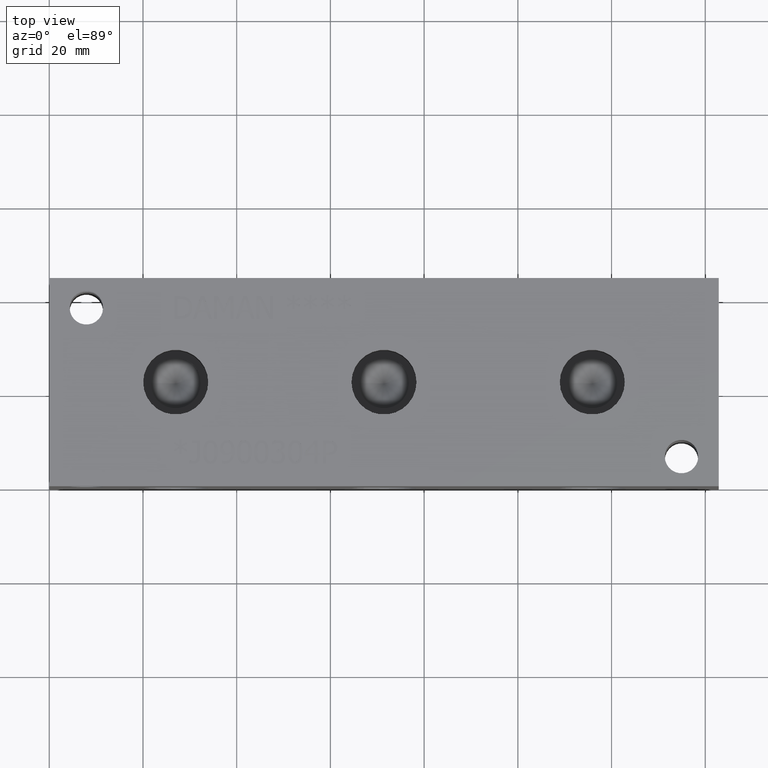
[diagram: clean part render]
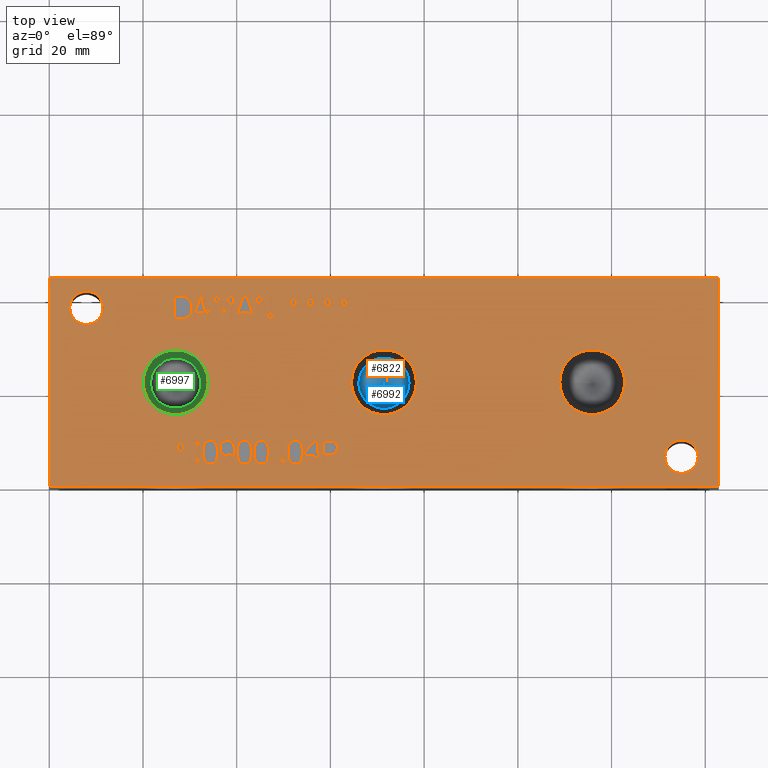
[diagram: same view with three faces highlighted in distinct colors, each labeled with its STEP entity id]
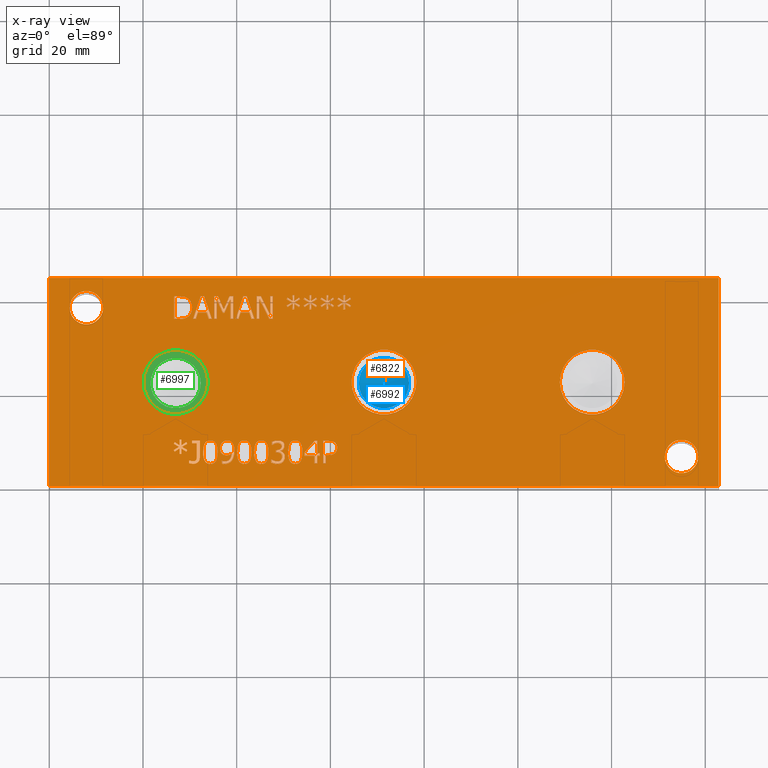
[diagram: x-ray of the same camera — body ghosted, the three highlighted faces saturated]
A machine part, top view with three faces highlighted in distinct colors.
The next image is the same camera in x-ray (body ghosted, the three faces saturated) — at least one of them is partly hidden behind the body in this view.
Their STEP definitions:

[orange] entity #6822 — the highlighted planar face has unit normal (0, 0, 1).
#48=CIRCLE('',#7092,3.5687);
#49=CIRCLE('',#7093,3.5687);
#50=CIRCLE('',#7094,3.5687);
#51=CIRCLE('',#7095,3.5687);
#52=CIRCLE('',#7096,6.9342);
#53=CIRCLE('',#7097,6.9342);
#54=CIRCLE('',#7098,6.9342);
#55=CIRCLE('',#7099,6.9342);
#56=CIRCLE('',#7100,6.9342);
#57=CIRCLE('',#7101,6.9342);
#109=FACE_BOUND('',#900,.T.);
#110=FACE_BOUND('',#901,.T.);
#111=FACE_BOUND('',#902,.T.);
#112=FACE_BOUND('',#903,.T.);
#113=FACE_BOUND('',#904,.T.);
#114=FACE_BOUND('',#905,.T.);
#115=FACE_BOUND('',#906,.T.);
#116=FACE_BOUND('',#907,.T.);
#117=FACE_BOUND('',#908,.T.);
#118=FACE_BOUND('',#909,.T.);
#119=FACE_BOUND('',#910,.T.);
#120=FACE_BOUND('',#911,.T.);
#121=FACE_BOUND('',#912,.T.);
#122=FACE_BOUND('',#913,.T.);
#123=FACE_BOUND('',#914,.T.);
#124=FACE_BOUND('',#915,.T.);
#125=FACE_BOUND('',#916,.T.);
#126=FACE_BOUND('',#917,.T.);
#127=FACE_BOUND('',#918,.T.);
#128=FACE_BOUND('',#919,.T.);
#129=FACE_BOUND('',#920,.T.);
#130=FACE_BOUND('',#921,.T.);
#131=FACE_BOUND('',#922,.T.);
#132=FACE_BOUND('',#923,.T.);
#218=PLANE('',#7091);
#538=FACE_OUTER_BOUND('',#899,.T.);
#899=EDGE_LOOP('',(#5100,#5101,#5102,#5103));
#900=EDGE_LOOP('',(#5104,#5105,#5106,#5107,#5108,#5109,#5110,#5111,#5112,
#5113,#5114,#5115,#5116,#5117,#5118,#5119,#5120,#5121));
#901=EDGE_LOOP('',(#5122,#5123,#5124,#5125,#5126,#5127,#5128,#5129,#5130,
#5131,#5132,#5133,#5134,#5135,#5136,#5137,#5138,#5139));
#902=EDGE_LOOP('',(#5140,#5141,#5142,#5143,#5144,#5145,#5146,#5147,#5148,
#5149,#5150,#5151,#5152));
#903=EDGE_LOOP('',(#5153,#5154,#5155,#5156,#5157,#5158,#5159,#5160));
#904=EDGE_LOOP('',(#5161,#5162,#5163,#5164,#5165,#5166,#5167));
#905=EDGE_LOOP('',(#5168,#5169,#5170,#5171,#5172,#5173,#5174,#5175));
#906=EDGE_LOOP('',(#5176,#5177,#5178,#5179,#5180,#5181,#5182,#5183,#5184,
#5185));
#907=EDGE_LOOP('',(#5186,#5187,#5188,#5189,#5190,#5191,#5192,#5193,#5194,
#5195,#5196,#5197,#5198,#5199,#5200,#5201,#5202,#5203));
#908=EDGE_LOOP('',(#5204,#5205,#5206,#5207,#5208,#5209,#5210,#5211,#5212,
#5213,#5214,#5215,#5216,#5217,#5218,#5219,#5220,#5221));
#909=EDGE_LOOP('',(#5222,#5223));
#910=EDGE_LOOP('',(#5224,#5225));
#911=EDGE_LOOP('',(#5226,#5227));
#912=EDGE_LOOP('',(#5228,#5229));
#913=EDGE_LOOP('',(#5230,#5231));
#914=EDGE_LOOP('',(#5232,#5233,#5234,#5235,#5236,#5237,#5238,#5239,#5240,
#5241,#5242,#5243,#5244,#5245,#5246,#5247,#5248,#5249,#5250,#5251,#5252,
#5253,#5254,#5255,#5256,#5257,#5258));
#915=EDGE_LOOP('',(#5259,#5260,#5261,#5262));
#916=EDGE_LOOP('',(#5263,#5264,#5265,#5266));
#917=EDGE_LOOP('',(#5267,#5268,#5269,#5270,#5271,#5272,#5273,#5274,#5275,
#5276,#5277,#5278,#5279,#5280));
#918=EDGE_LOOP('',(#5281,#5282,#5283,#5284));
#919=EDGE_LOOP('',(#5285,#5286,#5287,#5288,#5289,#5290,#5291,#5292,#5293,
#5294,#5295,#5296,#5297,#5298,#5299,#5300,#5301,#5302));
#920=EDGE_LOOP('',(#5303,#5304,#5305,#5306,#5307,#5308,#5309,#5310,#5311,
#5312,#5313,#5314));
#921=EDGE_LOOP('',(#5315,#5316,#5317,#5318));
#922=EDGE_LOOP('',(#5319,#5320,#5321,#5322,#5323,#5324,#5325,#5326,#5327,
#5328,#5329));
#923=EDGE_LOOP('',(#5330,#5331,#5332,#5333,#5334,#5335,#5336,#5337,#5338));
#1145=LINE('',#8776,#1830);
#1148=LINE('',#8782,#1833);
#1151=LINE('',#8788,#1836);
#1154=LINE('',#8794,#1839);
#1157=LINE('',#8800,#1842);
#1170=LINE('',#8861,#1855);
#1174=LINE('',#8869,#1859);
#1177=LINE('',#8875,#1862);
#1180=LINE('',#8881,#1865);
#1183=LINE('',#8887,#1868);
#1186=LINE('',#8893,#1871);
#1189=LINE('',#8899,#1874);
#1192=LINE('',#8905,#1877);
#1195=LINE('',#8911,#1880);
#1198=LINE('',#8917,#1883);
#1201=LINE('',#8922,#1886);
#1215=LINE('',#9157,#1900);
#1219=LINE('',#9165,#1904);
#1222=LINE('',#9171,#1907);
#1225=LINE('',#9177,#1910);
#1228=LINE('',#9183,#1913);
#1234=LINE('',#9246,#1919);
#1237=LINE('',#9252,#1922);
#1241=LINE('',#9295,#1926);
#1245=LINE('',#9303,#1930);
#1248=LINE('',#9309,#1933);
#1251=LINE('',#9315,#1936);
#1254=LINE('',#9321,#1939);
#1257=LINE('',#9327,#1942);
#1260=LINE('',#9333,#1945);
#1263=LINE('',#9339,#1948);
#1266=LINE('',#9345,#1951);
#1269=LINE('',#9351,#1954);
#1272=LINE('',#9357,#1957);
#1275=LINE('',#9363,#1960);
#1278=LINE('',#9369,#1963);
#1281=LINE('',#9375,#1966);
#1284=LINE('',#9381,#1969);
#1287=LINE('',#9387,#1972);
#1290=LINE('',#9393,#1975);
#1293=LINE('',#9398,#1978);
#1320=LINE('',#9863,#2005);
#1323=LINE('',#9869,#2008);
#1360=LINE('',#10524,#2045);
#1363=LINE('',#10530,#2048);
#1366=LINE('',#10536,#2051);
#1374=LINE('',#10637,#2059);
#1377=LINE('',#10643,#2062);
#1385=LINE('',#10744,#2070);
#1392=LINE('',#10826,#2077);
#1395=LINE('',#10832,#2080);
#1399=LINE('',#10875,#2084);
#1400=LINE('',#10877,#2085);
#1401=LINE('',#10879,#2086);
#1402=LINE('',#10880,#2087);
#1403=LINE('',#10883,#2088);
#1404=LINE('',#10885,#2089);
#1405=LINE('',#10887,#2090);
#1406=LINE('',#10889,#2091);
#1407=LINE('',#10891,#2092);
#1408=LINE('',#10893,#2093);
#1409=LINE('',#10895,#2094);
#1410=LINE('',#10897,#2095);
#1411=LINE('',#10899,#2096);
#1412=LINE('',#10901,#2097);
#1413=LINE('',#10903,#2098);
#1414=LINE('',#10905,#2099);
#1415=LINE('',#10907,#2100);
#1416=LINE('',#10909,#2101);
#1417=LINE('',#10911,#2102);
#1418=LINE('',#10913,#2103);
#1419=LINE('',#10915,#2104);
#1420=LINE('',#10916,#2105);
#1421=LINE('',#10919,#2106);
#1422=LINE('',#10921,#2107);
#1423=LINE('',#10923,#2108);
#1424=LINE('',#10925,#2109);
#1425=LINE('',#10927,#2110);
#1426=LINE('',#10929,#2111);
#1427=LINE('',#10931,#2112);
#1428=LINE('',#10933,#2113);
#1429=LINE('',#10935,#2114);
#1430=LINE('',#10937,#2115);
#1431=LINE('',#10939,#2116);
#1432=LINE('',#10941,#2117);
#1433=LINE('',#10943,#2118);
#1434=LINE('',#10945,#2119);
#1435=LINE('',#10947,#2120);
#1436=LINE('',#10949,#2121);
#1437=LINE('',#10951,#2122);
#1438=LINE('',#10952,#2123);
#1439=LINE('',#10955,#2124);
#1440=LINE('',#10957,#2125);
#1441=LINE('',#10959,#2126);
#1442=LINE('',#10961,#2127);
#1443=LINE('',#10963,#2128);
#1444=LINE('',#10965,#2129);
#1445=LINE('',#10967,#2130);
#1446=LINE('',#10969,#2131);
#1447=LINE('',#10971,#2132);
#1448=LINE('',#10973,#2133);
#1449=LINE('',#10975,#2134);
#1450=LINE('',#10977,#2135);
#1451=LINE('',#10978,#2136);
#1452=LINE('',#10981,#2137);
#1453=LINE('',#10983,#2138);
#1454=LINE('',#10985,#2139);
#1455=LINE('',#10987,#2140);
#1456=LINE('',#10989,#2141);
#1457=LINE('',#10991,#2142);
#1458=LINE('',#10993,#2143);
#1459=LINE('',#10994,#2144);
#1460=LINE('',#11012,#2145);
#1461=LINE('',#11014,#2146);
#1462=LINE('',#11016,#2147);
#1463=LINE('',#11023,#2148);
#1464=LINE('',#11025,#2149);
#1465=LINE('',#11027,#2150);
#1466=LINE('',#11029,#2151);
#1467=LINE('',#11031,#2152);
#1468=LINE('',#11033,#2153);
#1469=LINE('',#11035,#2154);
#1470=LINE('',#11036,#2155);
#1471=LINE('',#11039,#2156);
#1472=LINE('',#11041,#2157);
#1473=LINE('',#11043,#2158);
#1474=LINE('',#11045,#2159);
#1475=LINE('',#11047,#2160);
#1476=LINE('',#11049,#2161);
#1477=LINE('',#11051,#2162);
#1478=LINE('',#11053,#2163);
#1479=LINE('',#11055,#2164);
#1480=LINE('',#11056,#2165);
#1481=LINE('',#11059,#2166);
#1482=LINE('',#11061,#2167);
#1483=LINE('',#11063,#2168);
#1484=LINE('',#11065,#2169);
#1485=LINE('',#11067,#2170);
#1486=LINE('',#11069,#2171);
#1487=LINE('',#11071,#2172);
#1488=LINE('',#11073,#2173);
#1489=LINE('',#11075,#2174);
#1490=LINE('',#11077,#2175);
#1491=LINE('',#11079,#2176);
#1492=LINE('',#11081,#2177);
#1493=LINE('',#11083,#2178);
#1494=LINE('',#11085,#2179);
#1495=LINE('',#11087,#2180);
#1496=LINE('',#11089,#2181);
#1497=LINE('',#11091,#2182);
#1498=LINE('',#11092,#2183);
#1499=LINE('',#11095,#2184);
#1500=LINE('',#11097,#2185);
#1501=LINE('',#11099,#2186);
#1502=LINE('',#11101,#2187);
#1503=LINE('',#11103,#2188);
#1504=LINE('',#11105,#2189);
#1505=LINE('',#11107,#2190);
#1506=LINE('',#11109,#2191);
#1507=LINE('',#11111,#2192);
#1508=LINE('',#11113,#2193);
#1509=LINE('',#11115,#2194);
#1510=LINE('',#11117,#2195);
#1511=LINE('',#11119,#2196);
#1512=LINE('',#11121,#2197);
#1513=LINE('',#11123,#2198);
#1514=LINE('',#11125,#2199);
#1515=LINE('',#11127,#2200);
#1516=LINE('',#11128,#2201);
#1830=VECTOR('',#7359,10.);
#1833=VECTOR('',#7364,10.);
#1836=VECTOR('',#7369,10.);
#1839=VECTOR('',#7374,10.);
#1842=VECTOR('',#7379,10.);
#1855=VECTOR('',#7402,10.);
#1859=VECTOR('',#7408,10.);
#1862=VECTOR('',#7413,10.);
#1865=VECTOR('',#7418,10.);
#1868=VECTOR('',#7423,10.);
#1871=VECTOR('',#7428,10.);
#1874=VECTOR('',#7433,10.);
#1877=VECTOR('',#7438,10.);
#1880=VECTOR('',#7443,10.);
#1883=VECTOR('',#7448,10.);
#1886=VECTOR('',#7453,10.);
#1900=VECTOR('',#7473,10.);
#1904=VECTOR('',#7479,10.);
#1907=VECTOR('',#7484,10.);
#1910=VECTOR('',#7489,10.);
#1913=VECTOR('',#7494,10.);
#1919=VECTOR('',#7502,10.);
#1922=VECTOR('',#7507,10.);
#1926=VECTOR('',#7515,10.);
#1930=VECTOR('',#7521,10.);
#1933=VECTOR('',#7526,10.);
#1936=VECTOR('',#7531,10.);
#1939=VECTOR('',#7536,10.);
#1942=VECTOR('',#7541,10.);
#1945=VECTOR('',#7546,10.);
#1948=VECTOR('',#7551,10.);
#1951=VECTOR('',#7556,10.);
#1954=VECTOR('',#7561,10.);
#1957=VECTOR('',#7566,10.);
#1960=VECTOR('',#7571,10.);
#1963=VECTOR('',#7576,10.);
#1966=VECTOR('',#7581,10.);
#1969=VECTOR('',#7586,10.);
#1972=VECTOR('',#7591,10.);
#1975=VECTOR('',#7596,10.);
#1978=VECTOR('',#7601,10.);
#2005=VECTOR('',#7634,10.);
#2008=VECTOR('',#7639,10.);
#2045=VECTOR('',#7684,10.);
#2048=VECTOR('',#7689,10.);
#2051=VECTOR('',#7694,10.);
#2059=VECTOR('',#7704,10.);
#2062=VECTOR('',#7709,10.);
#2070=VECTOR('',#7719,10.);
#2077=VECTOR('',#7728,10.);
#2080=VECTOR('',#7733,10.);
#2084=VECTOR('',#7741,10.);
#2085=VECTOR('',#7742,10.);
#2086=VECTOR('',#7743,10.);
#2087=VECTOR('',#7744,10.);
#2088=VECTOR('',#7745,10.);
#2089=VECTOR('',#7746,10.);
#2090=VECTOR('',#7747,10.);
#2091=VECTOR('',#7748,10.);
#2092=VECTOR('',#7749,10.);
#2093=VECTOR('',#7750,10.);
#2094=VECTOR('',#7751,10.);
#2095=VECTOR('',#7752,10.);
#2096=VECTOR('',#7753,10.);
#2097=VECTOR('',#7754,10.);
#2098=VECTOR('',#7755,10.);
#2099=VECTOR('',#7756,10.);
#2100=VECTOR('',#7757,10.);
#2101=VECTOR('',#7758,10.);
#2102=VECTOR('',#7759,10.);
#2103=VECTOR('',#7760,10.);
#2104=VECTOR('',#7761,10.);
#2105=VECTOR('',#7762,10.);
#2106=VECTOR('',#7763,10.);
#2107=VECTOR('',#7764,10.);
#2108=VECTOR('',#7765,10.);
#2109=VECTOR('',#7766,10.);
#2110=VECTOR('',#7767,10.);
#2111=VECTOR('',#7768,10.);
#2112=VECTOR('',#7769,10.);
#2113=VECTOR('',#7770,10.);
#2114=VECTOR('',#7771,10.);
#2115=VECTOR('',#7772,10.);
#2116=VECTOR('',#7773,10.);
#2117=VECTOR('',#7774,10.);
#2118=VECTOR('',#7775,10.);
#2119=VECTOR('',#7776,10.);
#2120=VECTOR('',#7777,10.);
#2121=VECTOR('',#7778,10.);
#2122=VECTOR('',#7779,10.);
#2123=VECTOR('',#7780,10.);
#2124=VECTOR('',#7781,10.);
#2125=VECTOR('',#7782,10.);
#2126=VECTOR('',#7783,10.);
#2127=VECTOR('',#7784,10.);
#2128=VECTOR('',#7785,10.);
#2129=VECTOR('',#7786,10.);
#2130=VECTOR('',#7787,10.);
#2131=VECTOR('',#7788,10.);
#2132=VECTOR('',#7789,10.);
#2133=VECTOR('',#7790,10.);
#2134=VECTOR('',#7791,10.);
#2135=VECTOR('',#7792,10.);
#2136=VECTOR('',#7793,10.);
#2137=VECTOR('',#7794,10.);
#2138=VECTOR('',#7795,10.);
#2139=VECTOR('',#7796,10.);
#2140=VECTOR('',#7797,10.);
#2141=VECTOR('',#7798,10.);
#2142=VECTOR('',#7799,10.);
#2143=VECTOR('',#7800,10.);
#2144=VECTOR('',#7801,10.);
#2145=VECTOR('',#7802,10.);
#2146=VECTOR('',#7803,10.);
#2147=VECTOR('',#7804,10.);
#2148=VECTOR('',#7805,10.);
#2149=VECTOR('',#7806,10.);
#2150=VECTOR('',#7807,10.);
#2151=VECTOR('',#7808,10.);
#2152=VECTOR('',#7809,10.);
#2153=VECTOR('',#7810,10.);
#2154=VECTOR('',#7811,10.);
#2155=VECTOR('',#7812,10.);
#2156=VECTOR('',#7813,10.);
#2157=VECTOR('',#7814,10.);
#2158=VECTOR('',#7815,10.);
#2159=VECTOR('',#7816,10.);
#2160=VECTOR('',#7817,10.);
#2161=VECTOR('',#7818,10.);
#2162=VECTOR('',#7819,10.);
#2163=VECTOR('',#7820,10.);
#2164=VECTOR('',#7821,10.);
#2165=VECTOR('',#7822,10.);
#2166=VECTOR('',#7823,10.);
#2167=VECTOR('',#7824,10.);
#2168=VECTOR('',#7825,10.);
#2169=VECTOR('',#7826,10.);
#2170=VECTOR('',#7827,10.);
#2171=VECTOR('',#7828,10.);
#2172=VECTOR('',#7829,10.);
#2173=VECTOR('',#7830,10.);
#2174=VECTOR('',#7831,10.);
#2175=VECTOR('',#7832,10.);
#2176=VECTOR('',#7833,10.);
#2177=VECTOR('',#7834,10.);
#2178=VECTOR('',#7835,10.);
#2179=VECTOR('',#7836,10.);
#2180=VECTOR('',#7837,10.);
#2181=VECTOR('',#7838,10.);
#2182=VECTOR('',#7839,10.);
#2183=VECTOR('',#7840,10.);
#2184=VECTOR('',#7841,10.);
#2185=VECTOR('',#7842,10.);
#2186=VECTOR('',#7843,10.);
#2187=VECTOR('',#7844,10.);
#2188=VECTOR('',#7845,10.);
#2189=VECTOR('',#7846,10.);
#2190=VECTOR('',#7847,10.);
#2191=VECTOR('',#7848,10.);
#2192=VECTOR('',#7849,10.);
#2193=VECTOR('',#7850,10.);
#2194=VECTOR('',#7851,10.);
#2195=VECTOR('',#7852,10.);
#2196=VECTOR('',#7853,10.);
#2197=VECTOR('',#7854,10.);
#2198=VECTOR('',#7855,10.);
#2199=VECTOR('',#7856,10.);
#2200=VECTOR('',#7857,10.);
#2201=VECTOR('',#7858,10.);
#2507=B_SPLINE_CURVE_WITH_KNOTS('',2,(#8743,#8744,#8745,#8746),
 .UNSPECIFIED.,.F.,.F.,(3,1,3),(0.,1.,2.),.UNSPECIFIED.);
#2509=B_SPLINE_CURVE_WITH_KNOTS('',2,(#8764,#8765,#8766,#8767),
 .UNSPECIFIED.,.F.,.F.,(3,1,3),(0.,1.,2.),.UNSPECIFIED.);
#2511=B_SPLINE_CURVE_WITH_KNOTS('',2,(#8813,#8814,#8815,#8816),
 .UNSPECIFIED.,.F.,.F.,(3,1,3),(0.,1.,2.),.UNSPECIFIED.);
#2513=B_SPLINE_CURVE_WITH_KNOTS('',2,(#8831,#8832,#8833,#8834),
 .UNSPECIFIED.,.F.,.F.,(3,1,3),(0.,1.,2.),.UNSPECIFIED.);
#2531=B_SPLINE_CURVE_WITH_KNOTS('',2,(#9087,#9088,#9089,#9090),
 .UNSPECIFIED.,.F.,.F.,(3,1,3),(0.,1.,2.),.UNSPECIFIED.);
#2533=B_SPLINE_CURVE_WITH_KNOTS('',2,(#9108,#9109,#9110,#9111),
 .UNSPECIFIED.,.F.,.F.,(3,1,3),(0.,1.,2.),.UNSPECIFIED.);
#2535=B_SPLINE_CURVE_WITH_KNOTS('',2,(#9127,#9128,#9129,#9130),
 .UNSPECIFIED.,.F.,.F.,(3,1,3),(0.,1.,2.),.UNSPECIFIED.);
#2537=B_SPLINE_CURVE_WITH_KNOTS('',2,(#9145,#9146,#9147,#9148),
 .UNSPECIFIED.,.F.,.F.,(3,1,3),(0.,1.,2.),.UNSPECIFIED.);
#2539=B_SPLINE_CURVE_WITH_KNOTS('',2,(#9196,#9197,#9198,#9199),
 .UNSPECIFIED.,.F.,.F.,(3,1,3),(0.,1.,2.),.UNSPECIFIED.);
#2541=B_SPLINE_CURVE_WITH_KNOTS('',2,(#9215,#9216,#9217,#9218),
 .UNSPECIFIED.,.F.,.F.,(3,1,3),(0.,1.,2.),.UNSPECIFIED.);
#2543=B_SPLINE_CURVE_WITH_KNOTS('',2,(#9234,#9235,#9236,#9237),
 .UNSPECIFIED.,.F.,.F.,(3,1,3),(0.,1.,2.),.UNSPECIFIED.);
#2545=B_SPLINE_CURVE_WITH_KNOTS('',2,(#9265,#9266,#9267,#9268),
 .UNSPECIFIED.,.F.,.F.,(3,1,3),(0.,1.,2.),.UNSPECIFIED.);
#2547=B_SPLINE_CURVE_WITH_KNOTS('',2,(#9283,#9284,#9285,#9286),
 .UNSPECIFIED.,.F.,.F.,(3,1,3),(0.,1.,2.),.UNSPECIFIED.);
#2565=B_SPLINE_CURVE_WITH_KNOTS('',2,(#9563,#9564,#9565,#9566),
 .UNSPECIFIED.,.F.,.F.,(3,1,3),(0.,1.,2.),.UNSPECIFIED.);
#2567=B_SPLINE_CURVE_WITH_KNOTS('',2,(#9584,#9585,#9586,#9587),
 .UNSPECIFIED.,.F.,.F.,(3,1,3),(0.,1.,2.),.UNSPECIFIED.);
#2569=B_SPLINE_CURVE_WITH_KNOTS('',2,(#9603,#9604,#9605,#9606),
 .UNSPECIFIED.,.F.,.F.,(3,1,3),(0.,1.,2.),.UNSPECIFIED.);
#2571=B_SPLINE_CURVE_WITH_KNOTS('',2,(#9621,#9622,#9623,#9624),
 .UNSPECIFIED.,.F.,.F.,(3,1,3),(0.,1.,2.),.UNSPECIFIED.);
#2587=B_SPLINE_CURVE_WITH_KNOTS('',2,(#9773,#9774,#9775,#9776),
 .UNSPECIFIED.,.F.,.F.,(3,1,3),(0.,1.,2.),.UNSPECIFIED.);
#2589=B_SPLINE_CURVE_WITH_KNOTS('',2,(#9794,#9795,#9796,#9797),
 .UNSPECIFIED.,.F.,.F.,(3,1,3),(0.,1.,2.),.UNSPECIFIED.);
#2591=B_SPLINE_CURVE_WITH_KNOTS('',2,(#9813,#9814,#9815,#9816),
 .UNSPECIFIED.,.F.,.F.,(3,1,3),(0.,1.,2.),.UNSPECIFIED.);
#2593=B_SPLINE_CURVE_WITH_KNOTS('',2,(#9832,#9833,#9834,#9835),
 .UNSPECIFIED.,.F.,.F.,(3,1,3),(0.,1.,2.),.UNSPECIFIED.);
#2595=B_SPLINE_CURVE_WITH_KNOTS('',2,(#9851,#9852,#9853,#9854),
 .UNSPECIFIED.,.F.,.F.,(3,1,3),(0.,1.,2.),.UNSPECIFIED.);
#2597=B_SPLINE_CURVE_WITH_KNOTS('',2,(#9882,#9883,#9884,#9885),
 .UNSPECIFIED.,.F.,.F.,(3,1,3),(0.,1.,2.),.UNSPECIFIED.);
#2599=B_SPLINE_CURVE_WITH_KNOTS('',2,(#9901,#9902,#9903,#9904),
 .UNSPECIFIED.,.F.,.F.,(3,1,3),(0.,1.,2.),.UNSPECIFIED.);
#2601=B_SPLINE_CURVE_WITH_KNOTS('',2,(#9920,#9921,#9922,#9923),
 .UNSPECIFIED.,.F.,.F.,(3,1,3),(0.,1.,2.),.UNSPECIFIED.);
#2603=B_SPLINE_CURVE_WITH_KNOTS('',2,(#9939,#9940,#9941,#9942),
 .UNSPECIFIED.,.F.,.F.,(3,1,3),(0.,1.,2.),.UNSPECIFIED.);
#2605=B_SPLINE_CURVE_WITH_KNOTS('',2,(#9958,#9959,#9960,#9961),
 .UNSPECIFIED.,.F.,.F.,(3,1,3),(0.,1.,2.),.UNSPECIFIED.);
#2607=B_SPLINE_CURVE_WITH_KNOTS('',2,(#9977,#9978,#9979,#9980),
 .UNSPECIFIED.,.F.,.F.,(3,1,3),(0.,1.,2.),.UNSPECIFIED.);
#2609=B_SPLINE_CURVE_WITH_KNOTS('',2,(#9995,#9996,#9997,#9998),
 .UNSPECIFIED.,.F.,.F.,(3,1,3),(0.,1.,2.),.UNSPECIFIED.);
#2627=B_SPLINE_CURVE_WITH_KNOTS('',2,(#10166,#10167,#10168,#10169),
 .UNSPECIFIED.,.F.,.F.,(3,1,3),(0.,1.,2.),.UNSPECIFIED.);
#2629=B_SPLINE_CURVE_WITH_KNOTS('',2,(#10187,#10188,#10189,#10190),
 .UNSPECIFIED.,.F.,.F.,(3,1,3),(0.,1.,2.),.UNSPECIFIED.);
#2631=B_SPLINE_CURVE_WITH_KNOTS('',2,(#10206,#10207,#10208,#10209),
 .UNSPECIFIED.,.F.,.F.,(3,1,3),(0.,1.,2.),.UNSPECIFIED.);
#2633=B_SPLINE_CURVE_WITH_KNOTS('',2,(#10224,#10225,#10226,#10227),
 .UNSPECIFIED.,.F.,.F.,(3,1,3),(0.,1.,2.),.UNSPECIFIED.);
#2651=B_SPLINE_CURVE_WITH_KNOTS('',2,(#10395,#10396,#10397,#10398),
 .UNSPECIFIED.,.F.,.F.,(3,1,3),(0.,1.,2.),.UNSPECIFIED.);
#2653=B_SPLINE_CURVE_WITH_KNOTS('',2,(#10416,#10417,#10418,#10419),
 .UNSPECIFIED.,.F.,.F.,(3,1,3),(0.,1.,2.),.UNSPECIFIED.);
#2655=B_SPLINE_CURVE_WITH_KNOTS('',2,(#10435,#10436,#10437,#10438),
 .UNSPECIFIED.,.F.,.F.,(3,1,3),(0.,1.,2.),.UNSPECIFIED.);
#2657=B_SPLINE_CURVE_WITH_KNOTS('',2,(#10453,#10454,#10455,#10456),
 .UNSPECIFIED.,.F.,.F.,(3,1,3),(0.,1.,2.),.UNSPECIFIED.);
#2659=B_SPLINE_CURVE_WITH_KNOTS('',2,(#10472,#10473,#10474,#10475),
 .UNSPECIFIED.,.F.,.F.,(3,1,3),(0.,1.,2.),.UNSPECIFIED.);
#2661=B_SPLINE_CURVE_WITH_KNOTS('',2,(#10493,#10494,#10495,#10496),
 .UNSPECIFIED.,.F.,.F.,(3,1,3),(0.,1.,2.),.UNSPECIFIED.);
#2663=B_SPLINE_CURVE_WITH_KNOTS('',2,(#10512,#10513,#10514,#10515),
 .UNSPECIFIED.,.F.,.F.,(3,1,3),(0.,1.,2.),.UNSPECIFIED.);
#2665=B_SPLINE_CURVE_WITH_KNOTS('',2,(#10549,#10550,#10551,#10552),
 .UNSPECIFIED.,.F.,.F.,(3,1,3),(0.,1.,2.),.UNSPECIFIED.);
#2667=B_SPLINE_CURVE_WITH_KNOTS('',2,(#10568,#10569,#10570,#10571),
 .UNSPECIFIED.,.F.,.F.,(3,1,3),(0.,1.,2.),.UNSPECIFIED.);
#2669=B_SPLINE_CURVE_WITH_KNOTS('',2,(#10587,#10588,#10589,#10590),
 .UNSPECIFIED.,.F.,.F.,(3,1,3),(0.,1.,2.),.UNSPECIFIED.);
#2671=B_SPLINE_CURVE_WITH_KNOTS('',2,(#10606,#10607,#10608,#10609),
 .UNSPECIFIED.,.F.,.F.,(3,1,3),(0.,1.,2.),.UNSPECIFIED.);
#2673=B_SPLINE_CURVE_WITH_KNOTS('',2,(#10625,#10626,#10627,#10628),
 .UNSPECIFIED.,.F.,.F.,(3,1,3),(0.,1.,2.),.UNSPECIFIED.);
#2675=B_SPLINE_CURVE_WITH_KNOTS('',2,(#10656,#10657,#10658,#10659),
 .UNSPECIFIED.,.F.,.F.,(3,1,3),(0.,1.,2.),.UNSPECIFIED.);
#2677=B_SPLINE_CURVE_WITH_KNOTS('',2,(#10675,#10676,#10677,#10678),
 .UNSPECIFIED.,.F.,.F.,(3,1,3),(0.,1.,2.),.UNSPECIFIED.);
#2679=B_SPLINE_CURVE_WITH_KNOTS('',2,(#10694,#10695,#10696,#10697),
 .UNSPECIFIED.,.F.,.F.,(3,1,3),(0.,1.,2.),.UNSPECIFIED.);
#2681=B_SPLINE_CURVE_WITH_KNOTS('',2,(#10713,#10714,#10715,#10716),
 .UNSPECIFIED.,.F.,.F.,(3,1,3),(0.,1.,2.),.UNSPECIFIED.);
#2683=B_SPLINE_CURVE_WITH_KNOTS('',2,(#10732,#10733,#10734,#10735),
 .UNSPECIFIED.,.F.,.F.,(3,1,3),(0.,1.,2.),.UNSPECIFIED.);
#2685=B_SPLINE_CURVE_WITH_KNOTS('',2,(#10757,#10758,#10759,#10760),
 .UNSPECIFIED.,.F.,.F.,(3,1,3),(0.,1.,2.),.UNSPECIFIED.);
#2687=B_SPLINE_CURVE_WITH_KNOTS('',2,(#10776,#10777,#10778,#10779),
 .UNSPECIFIED.,.F.,.F.,(3,1,3),(0.,1.,2.),.UNSPECIFIED.);
#2689=B_SPLINE_CURVE_WITH_KNOTS('',2,(#10795,#10796,#10797,#10798),
 .UNSPECIFIED.,.F.,.F.,(3,1,3),(0.,1.,2.),.UNSPECIFIED.);
#2691=B_SPLINE_CURVE_WITH_KNOTS('',2,(#10814,#10815,#10816,#10817),
 .UNSPECIFIED.,.F.,.F.,(3,1,3),(0.,1.,2.),.UNSPECIFIED.);
#2693=B_SPLINE_CURVE_WITH_KNOTS('',2,(#10845,#10846,#10847,#10848),
 .UNSPECIFIED.,.F.,.F.,(3,1,3),(0.,1.,2.),.UNSPECIFIED.);
#2695=B_SPLINE_CURVE_WITH_KNOTS('',2,(#10863,#10864,#10865,#10866),
 .UNSPECIFIED.,.F.,.F.,(3,1,3),(0.,1.,2.),.UNSPECIFIED.);
#2697=B_SPLINE_CURVE_WITH_KNOTS('',2,(#10997,#10998,#10999,#11000),
 .UNSPECIFIED.,.F.,.F.,(3,1,3),(0.,1.,2.),.UNSPECIFIED.);
#2698=B_SPLINE_CURVE_WITH_KNOTS('',2,(#11002,#11003,#11004,#11005),
 .UNSPECIFIED.,.F.,.F.,(3,1,3),(0.,1.,2.),.UNSPECIFIED.);
#2699=B_SPLINE_CURVE_WITH_KNOTS('',2,(#11007,#11008,#11009,#11010),
 .UNSPECIFIED.,.F.,.F.,(3,1,3),(0.,1.,2.),.UNSPECIFIED.);
#2700=B_SPLINE_CURVE_WITH_KNOTS('',2,(#11017,#11018,#11019,#11020),
 .UNSPECIFIED.,.F.,.F.,(3,1,3),(0.,1.,2.),.UNSPECIFIED.);
#2727=VERTEX_POINT('',#8741);
#2728=VERTEX_POINT('',#8742);
#2731=VERTEX_POINT('',#8763);
#2733=VERTEX_POINT('',#8775);
#2735=VERTEX_POINT('',#8781);
#2737=VERTEX_POINT('',#8787);
#2739=VERTEX_POINT('',#8793);
#2741=VERTEX_POINT('',#8799);
#2743=VERTEX_POINT('',#8812);
#2751=VERTEX_POINT('',#8859);
#2752=VERTEX_POINT('',#8860);
#2755=VERTEX_POINT('',#8868);
#2757=VERTEX_POINT('',#8874);
#2759=VERTEX_POINT('',#8880);
#2761=VERTEX_POINT('',#8886);
#2763=VERTEX_POINT('',#8892);
#2765=VERTEX_POINT('',#8898);
#2767=VERTEX_POINT('',#8904);
#2769=VERTEX_POINT('',#8910);
#2771=VERTEX_POINT('',#8916);
#2789=VERTEX_POINT('',#9085);
#2790=VERTEX_POINT('',#9086);
#2793=VERTEX_POINT('',#9107);
#2795=VERTEX_POINT('',#9126);
#2797=VERTEX_POINT('',#9155);
#2798=VERTEX_POINT('',#9156);
#2801=VERTEX_POINT('',#9164);
#2803=VERTEX_POINT('',#9170);
#2805=VERTEX_POINT('',#9176);
#2807=VERTEX_POINT('',#9182);
#2809=VERTEX_POINT('',#9195);
#2811=VERTEX_POINT('',#9214);
#2813=VERTEX_POINT('',#9233);
#2815=VERTEX_POINT('',#9245);
#2817=VERTEX_POINT('',#9251);
#2819=VERTEX_POINT('',#9264);
#2821=VERTEX_POINT('',#9293);
#2822=VERTEX_POINT('',#9294);
#2825=VERTEX_POINT('',#9302);
#2827=VERTEX_POINT('',#9308);
#2829=VERTEX_POINT('',#9314);
#2831=VERTEX_POINT('',#9320);
#2833=VERTEX_POINT('',#9326);
#2835=VERTEX_POINT('',#9332);
#2837=VERTEX_POINT('',#9338);
#2839=VERTEX_POINT('',#9344);
#2841=VERTEX_POINT('',#9350);
#2843=VERTEX_POINT('',#9356);
#2845=VERTEX_POINT('',#9362);
#2847=VERTEX_POINT('',#9368);
#2849=VERTEX_POINT('',#9374);
#2851=VERTEX_POINT('',#9380);
#2853=VERTEX_POINT('',#9386);
#2855=VERTEX_POINT('',#9392);
#2873=VERTEX_POINT('',#9561);
#2874=VERTEX_POINT('',#9562);
#2877=VERTEX_POINT('',#9583);
#2879=VERTEX_POINT('',#9602);
#2895=VERTEX_POINT('',#9771);
#2896=VERTEX_POINT('',#9772);
#2899=VERTEX_POINT('',#9793);
#2901=VERTEX_POINT('',#9812);
#2903=VERTEX_POINT('',#9831);
#2905=VERTEX_POINT('',#9850);
#2907=VERTEX_POINT('',#9862);
#2909=VERTEX_POINT('',#9868);
#2911=VERTEX_POINT('',#9881);
#2913=VERTEX_POINT('',#9900);
#2915=VERTEX_POINT('',#9919);
#2917=VERTEX_POINT('',#9938);
#2919=VERTEX_POINT('',#9957);
#2921=VERTEX_POINT('',#9976);
#2939=VERTEX_POINT('',#10164);
#2940=VERTEX_POINT('',#10165);
#2943=VERTEX_POINT('',#10186);
#2945=VERTEX_POINT('',#10205);
#2963=VERTEX_POINT('',#10393);
#2964=VERTEX_POINT('',#10394);
#2967=VERTEX_POINT('',#10415);
#2969=VERTEX_POINT('',#10434);
#2971=VERTEX_POINT('',#10470);
#2972=VERTEX_POINT('',#10471);
#2975=VERTEX_POINT('',#10492);
#2977=VERTEX_POINT('',#10511);
#2979=VERTEX_POINT('',#10523);
#2981=VERTEX_POINT('',#10529);
#2983=VERTEX_POINT('',#10535);
#2985=VERTEX_POINT('',#10548);
#2987=VERTEX_POINT('',#10567);
#2989=VERTEX_POINT('',#10586);
#2991=VERTEX_POINT('',#10605);
#2993=VERTEX_POINT('',#10624);
#2995=VERTEX_POINT('',#10636);
#2997=VERTEX_POINT('',#10642);
#2999=VERTEX_POINT('',#10655);
#3001=VERTEX_POINT('',#10674);
#3003=VERTEX_POINT('',#10693);
#3005=VERTEX_POINT('',#10712);
#3007=VERTEX_POINT('',#10731);
#3009=VERTEX_POINT('',#10743);
#3011=VERTEX_POINT('',#10756);
#3013=VERTEX_POINT('',#10775);
#3015=VERTEX_POINT('',#10794);
#3017=VERTEX_POINT('',#10813);
#3019=VERTEX_POINT('',#10825);
#3021=VERTEX_POINT('',#10831);
#3023=VERTEX_POINT('',#10844);
#3025=VERTEX_POINT('',#10873);
#3026=VERTEX_POINT('',#10874);
#3027=VERTEX_POINT('',#10876);
#3028=VERTEX_POINT('',#10878);
#3029=VERTEX_POINT('',#10881);
#3030=VERTEX_POINT('',#10882);
#3031=VERTEX_POINT('',#10884);
#3032=VERTEX_POINT('',#10886);
#3033=VERTEX_POINT('',#10888);
#3034=VERTEX_POINT('',#10890);
#3035=VERTEX_POINT('',#10892);
#3036=VERTEX_POINT('',#10894);
#3037=VERTEX_POINT('',#10896);
#3038=VERTEX_POINT('',#10898);
#3039=VERTEX_POINT('',#10900);
#3040=VERTEX_POINT('',#10902);
#3041=VERTEX_POINT('',#10904);
#3042=VERTEX_POINT('',#10906);
#3043=VERTEX_POINT('',#10908);
#3044=VERTEX_POINT('',#10910);
#3045=VERTEX_POINT('',#10912);
#3046=VERTEX_POINT('',#10914);
#3047=VERTEX_POINT('',#10917);
#3048=VERTEX_POINT('',#10918);
#3049=VERTEX_POINT('',#10920);
#3050=VERTEX_POINT('',#10922);
#3051=VERTEX_POINT('',#10924);
#3052=VERTEX_POINT('',#10926);
#3053=VERTEX_POINT('',#10928);
#3054=VERTEX_POINT('',#10930);
#3055=VERTEX_POINT('',#10932);
#3056=VERTEX_POINT('',#10934);
#3057=VERTEX_POINT('',#10936);
#3058=VERTEX_POINT('',#10938);
#3059=VERTEX_POINT('',#10940);
#3060=VERTEX_POINT('',#10942);
#3061=VERTEX_POINT('',#10944);
#3062=VERTEX_POINT('',#10946);
#3063=VERTEX_POINT('',#10948);
#3064=VERTEX_POINT('',#10950);
#3065=VERTEX_POINT('',#10953);
#3066=VERTEX_POINT('',#10954);
#3067=VERTEX_POINT('',#10956);
#3068=VERTEX_POINT('',#10958);
#3069=VERTEX_POINT('',#10960);
#3070=VERTEX_POINT('',#10962);
#3071=VERTEX_POINT('',#10964);
#3072=VERTEX_POINT('',#10966);
#3073=VERTEX_POINT('',#10968);
#3074=VERTEX_POINT('',#10970);
#3075=VERTEX_POINT('',#10972);
#3076=VERTEX_POINT('',#10974);
#3077=VERTEX_POINT('',#10976);
#3078=VERTEX_POINT('',#10979);
#3079=VERTEX_POINT('',#10980);
#3080=VERTEX_POINT('',#10982);
#3081=VERTEX_POINT('',#10984);
#3082=VERTEX_POINT('',#10986);
#3083=VERTEX_POINT('',#10988);
#3084=VERTEX_POINT('',#10990);
#3085=VERTEX_POINT('',#10992);
#3086=VERTEX_POINT('',#10995);
#3087=VERTEX_POINT('',#10996);
#3088=VERTEX_POINT('',#11001);
#3089=VERTEX_POINT('',#11006);
#3090=VERTEX_POINT('',#11011);
#3091=VERTEX_POINT('',#11013);
#3092=VERTEX_POINT('',#11015);
#3093=VERTEX_POINT('',#11021);
#3094=VERTEX_POINT('',#11022);
#3095=VERTEX_POINT('',#11024);
#3096=VERTEX_POINT('',#11026);
#3097=VERTEX_POINT('',#11028);
#3098=VERTEX_POINT('',#11030);
#3099=VERTEX_POINT('',#11032);
#3100=VERTEX_POINT('',#11034);
#3101=VERTEX_POINT('',#11037);
#3102=VERTEX_POINT('',#11038);
#3103=VERTEX_POINT('',#11040);
#3104=VERTEX_POINT('',#11042);
#3105=VERTEX_POINT('',#11044);
#3106=VERTEX_POINT('',#11046);
#3107=VERTEX_POINT('',#11048);
#3108=VERTEX_POINT('',#11050);
#3109=VERTEX_POINT('',#11052);
#3110=VERTEX_POINT('',#11054);
#3111=VERTEX_POINT('',#11057);
#3112=VERTEX_POINT('',#11058);
#3113=VERTEX_POINT('',#11060);
#3114=VERTEX_POINT('',#11062);
#3115=VERTEX_POINT('',#11064);
#3116=VERTEX_POINT('',#11066);
#3117=VERTEX_POINT('',#11068);
#3118=VERTEX_POINT('',#11070);
#3119=VERTEX_POINT('',#11072);
#3120=VERTEX_POINT('',#11074);
#3121=VERTEX_POINT('',#11076);
#3122=VERTEX_POINT('',#11078);
#3123=VERTEX_POINT('',#11080);
#3124=VERTEX_POINT('',#11082);
#3125=VERTEX_POINT('',#11084);
#3126=VERTEX_POINT('',#11086);
#3127=VERTEX_POINT('',#11088);
#3128=VERTEX_POINT('',#11090);
#3129=VERTEX_POINT('',#11093);
#3130=VERTEX_POINT('',#11094);
#3131=VERTEX_POINT('',#11096);
#3132=VERTEX_POINT('',#11098);
#3133=VERTEX_POINT('',#11100);
#3134=VERTEX_POINT('',#11102);
#3135=VERTEX_POINT('',#11104);
#3136=VERTEX_POINT('',#11106);
#3137=VERTEX_POINT('',#11108);
#3138=VERTEX_POINT('',#11110);
#3139=VERTEX_POINT('',#11112);
#3140=VERTEX_POINT('',#11114);
#3141=VERTEX_POINT('',#11116);
#3142=VERTEX_POINT('',#11118);
#3143=VERTEX_POINT('',#11120);
#3144=VERTEX_POINT('',#11122);
#3145=VERTEX_POINT('',#11124);
#3146=VERTEX_POINT('',#11126);
#3147=VERTEX_POINT('',#11129);
#3148=VERTEX_POINT('',#11130);
#3149=VERTEX_POINT('',#11133);
#3150=VERTEX_POINT('',#11134);
#3151=VERTEX_POINT('',#11137);
#3152=VERTEX_POINT('',#11138);
#3153=VERTEX_POINT('',#11141);
#3154=VERTEX_POINT('',#11142);
#3155=VERTEX_POINT('',#11145);
#3156=VERTEX_POINT('',#11146);
#3380=EDGE_CURVE('',#2727,#2728,#2507,.T.);
#3384=EDGE_CURVE('',#2731,#2727,#2509,.T.);
#3387=EDGE_CURVE('',#2733,#2731,#1145,.T.);
#3390=EDGE_CURVE('',#2735,#2733,#1148,.T.);
#3393=EDGE_CURVE('',#2737,#2735,#1151,.T.);
#3396=EDGE_CURVE('',#2739,#2737,#1154,.T.);
#3399=EDGE_CURVE('',#2741,#2739,#1157,.T.);
#3402=EDGE_CURVE('',#2743,#2741,#2511,.T.);
#3405=EDGE_CURVE('',#2728,#2743,#2513,.T.);
#3416=EDGE_CURVE('',#2751,#2752,#1170,.T.);
#3420=EDGE_CURVE('',#2755,#2751,#1174,.T.);
#3423=EDGE_CURVE('',#2757,#2755,#1177,.T.);
#3426=EDGE_CURVE('',#2759,#2757,#1180,.T.);
#3429=EDGE_CURVE('',#2761,#2759,#1183,.T.);
#3432=EDGE_CURVE('',#2763,#2761,#1186,.T.);
#3435=EDGE_CURVE('',#2765,#2763,#1189,.T.);
#3438=EDGE_CURVE('',#2767,#2765,#1192,.T.);
#3441=EDGE_CURVE('',#2769,#2767,#1195,.T.);
#3444=EDGE_CURVE('',#2771,#2769,#1198,.T.);
#3447=EDGE_CURVE('',#2752,#2771,#1201,.T.);
#3473=EDGE_CURVE('',#2789,#2790,#2531,.T.);
#3477=EDGE_CURVE('',#2793,#2789,#2533,.T.);
#3480=EDGE_CURVE('',#2795,#2793,#2535,.T.);
#3483=EDGE_CURVE('',#2790,#2795,#2537,.T.);
#3485=EDGE_CURVE('',#2797,#2798,#1215,.T.);
#3489=EDGE_CURVE('',#2801,#2797,#1219,.T.);
#3492=EDGE_CURVE('',#2803,#2801,#1222,.T.);
#3495=EDGE_CURVE('',#2805,#2803,#1225,.T.);
#3498=EDGE_CURVE('',#2807,#2805,#1228,.T.);
#3501=EDGE_CURVE('',#2809,#2807,#2539,.T.);
#3504=EDGE_CURVE('',#2811,#2809,#2541,.T.);
#3507=EDGE_CURVE('',#2813,#2811,#2543,.T.);
#3510=EDGE_CURVE('',#2815,#2813,#1234,.T.);
#3513=EDGE_CURVE('',#2817,#2815,#1237,.T.);
#3516=EDGE_CURVE('',#2819,#2817,#2545,.T.);
#3519=EDGE_CURVE('',#2798,#2819,#2547,.T.);
#3521=EDGE_CURVE('',#2821,#2822,#1241,.T.);
#3525=EDGE_CURVE('',#2825,#2821,#1245,.T.);
#3528=EDGE_CURVE('',#2827,#2825,#1248,.T.);
#3531=EDGE_CURVE('',#2829,#2827,#1251,.T.);
#3534=EDGE_CURVE('',#2831,#2829,#1254,.T.);
#3537=EDGE_CURVE('',#2833,#2831,#1257,.T.);
#3540=EDGE_CURVE('',#2835,#2833,#1260,.T.);
#3543=EDGE_CURVE('',#2837,#2835,#1263,.T.);
#3546=EDGE_CURVE('',#2839,#2837,#1266,.T.);
#3549=EDGE_CURVE('',#2841,#2839,#1269,.T.);
#3552=EDGE_CURVE('',#2843,#2841,#1272,.T.);
#3555=EDGE_CURVE('',#2845,#2843,#1275,.T.);
#3558=EDGE_CURVE('',#2847,#2845,#1278,.T.);
#3561=EDGE_CURVE('',#2849,#2847,#1281,.T.);
#3564=EDGE_CURVE('',#2851,#2849,#1284,.T.);
#3567=EDGE_CURVE('',#2853,#2851,#1287,.T.);
#3570=EDGE_CURVE('',#2855,#2853,#1290,.T.);
#3573=EDGE_CURVE('',#2822,#2855,#1293,.T.);
#3599=EDGE_CURVE('',#2873,#2874,#2565,.T.);
#3603=EDGE_CURVE('',#2877,#2873,#2567,.T.);
#3606=EDGE_CURVE('',#2879,#2877,#2569,.T.);
#3609=EDGE_CURVE('',#2874,#2879,#2571,.T.);
#3632=EDGE_CURVE('',#2895,#2896,#2587,.T.);
#3636=EDGE_CURVE('',#2899,#2895,#2589,.T.);
#3639=EDGE_CURVE('',#2901,#2899,#2591,.T.);
#3642=EDGE_CURVE('',#2903,#2901,#2593,.T.);
#3645=EDGE_CURVE('',#2905,#2903,#2595,.T.);
#3648=EDGE_CURVE('',#2907,#2905,#1320,.T.);
#3651=EDGE_CURVE('',#2909,#2907,#1323,.T.);
#3654=EDGE_CURVE('',#2911,#2909,#2597,.T.);
#3657=EDGE_CURVE('',#2913,#2911,#2599,.T.);
#3660=EDGE_CURVE('',#2915,#2913,#2601,.T.);
#3663=EDGE_CURVE('',#2917,#2915,#2603,.T.);
#3666=EDGE_CURVE('',#2919,#2917,#2605,.T.);
#3669=EDGE_CURVE('',#2921,#2919,#2607,.T.);
#3672=EDGE_CURVE('',#2896,#2921,#2609,.T.);
#3698=EDGE_CURVE('',#2939,#2940,#2627,.T.);
#3702=EDGE_CURVE('',#2943,#2939,#2629,.T.);
#3705=EDGE_CURVE('',#2945,#2943,#2631,.T.);
#3708=EDGE_CURVE('',#2940,#2945,#2633,.T.);
#3734=EDGE_CURVE('',#2963,#2964,#2651,.T.);
#3738=EDGE_CURVE('',#2967,#2963,#2653,.T.);
#3741=EDGE_CURVE('',#2969,#2967,#2655,.T.);
#3744=EDGE_CURVE('',#2964,#2969,#2657,.T.);
#3746=EDGE_CURVE('',#2971,#2972,#2659,.T.);
#3750=EDGE_CURVE('',#2975,#2971,#2661,.T.);
#3753=EDGE_CURVE('',#2977,#2975,#2663,.T.);
#3756=EDGE_CURVE('',#2979,#2977,#1360,.T.);
#3759=EDGE_CURVE('',#2981,#2979,#1363,.T.);
#3762=EDGE_CURVE('',#2983,#2981,#1366,.T.);
#3765=EDGE_CURVE('',#2985,#2983,#2665,.T.);
#3768=EDGE_CURVE('',#2987,#2985,#2667,.T.);
#3771=EDGE_CURVE('',#2989,#2987,#2669,.T.);
#3774=EDGE_CURVE('',#2991,#2989,#2671,.T.);
#3777=EDGE_CURVE('',#2993,#2991,#2673,.T.);
#3780=EDGE_CURVE('',#2995,#2993,#1374,.T.);
#3783=EDGE_CURVE('',#2997,#2995,#1377,.T.);
#3786=EDGE_CURVE('',#2999,#2997,#2675,.T.);
#3789=EDGE_CURVE('',#3001,#2999,#2677,.T.);
#3792=EDGE_CURVE('',#3003,#3001,#2679,.T.);
#3795=EDGE_CURVE('',#3005,#3003,#2681,.T.);
#3798=EDGE_CURVE('',#3007,#3005,#2683,.T.);
#3801=EDGE_CURVE('',#3009,#3007,#1385,.T.);
#3804=EDGE_CURVE('',#3011,#3009,#2685,.T.);
#3807=EDGE_CURVE('',#3013,#3011,#2687,.T.);
#3810=EDGE_CURVE('',#3015,#3013,#2689,.T.);
#3813=EDGE_CURVE('',#3017,#3015,#2691,.T.);
#3816=EDGE_CURVE('',#3019,#3017,#1392,.T.);
#3819=EDGE_CURVE('',#3021,#3019,#1395,.T.);
#3822=EDGE_CURVE('',#3023,#3021,#2693,.T.);
#3825=EDGE_CURVE('',#2972,#3023,#2695,.T.);
#3827=EDGE_CURVE('',#3025,#3026,#1399,.T.);
#3828=EDGE_CURVE('',#3026,#3027,#1400,.T.);
#3829=EDGE_CURVE('',#3027,#3028,#1401,.T.);
#3830=EDGE_CURVE('',#3028,#3025,#1402,.T.);
#3831=EDGE_CURVE('',#3029,#3030,#1403,.T.);
#3832=EDGE_CURVE('',#3030,#3031,#1404,.T.);
#3833=EDGE_CURVE('',#3031,#3032,#1405,.T.);
#3834=EDGE_CURVE('',#3032,#3033,#1406,.T.);
#3835=EDGE_CURVE('',#3033,#3034,#1407,.T.);
#3836=EDGE_CURVE('',#3034,#3035,#1408,.T.);
#3837=EDGE_CURVE('',#3035,#3036,#1409,.T.);
#3838=EDGE_CURVE('',#3036,#3037,#1410,.T.);
#3839=EDGE_CURVE('',#3037,#3038,#1411,.T.);
#3840=EDGE_CURVE('',#3038,#3039,#1412,.T.);
#3841=EDGE_CURVE('',#3039,#3040,#1413,.T.);
#3842=EDGE_CURVE('',#3040,#3041,#1414,.T.);
#3843=EDGE_CURVE('',#3041,#3042,#1415,.T.);
#3844=EDGE_CURVE('',#3042,#3043,#1416,.T.);
#3845=EDGE_CURVE('',#3043,#3044,#1417,.T.);
#3846=EDGE_CURVE('',#3044,#3045,#1418,.T.);
#3847=EDGE_CURVE('',#3045,#3046,#1419,.T.);
#3848=EDGE_CURVE('',#3046,#3029,#1420,.T.);
#3849=EDGE_CURVE('',#3047,#3048,#1421,.T.);
#3850=EDGE_CURVE('',#3048,#3049,#1422,.T.);
#3851=EDGE_CURVE('',#3049,#3050,#1423,.T.);
#3852=EDGE_CURVE('',#3050,#3051,#1424,.T.);
#3853=EDGE_CURVE('',#3051,#3052,#1425,.T.);
#3854=EDGE_CURVE('',#3052,#3053,#1426,.T.);
#3855=EDGE_CURVE('',#3053,#3054,#1427,.T.);
#3856=EDGE_CURVE('',#3054,#3055,#1428,.T.);
#3857=EDGE_CURVE('',#3055,#3056,#1429,.T.);
#3858=EDGE_CURVE('',#3056,#3057,#1430,.T.);
#3859=EDGE_CURVE('',#3057,#3058,#1431,.T.);
#3860=EDGE_CURVE('',#3058,#3059,#1432,.T.);
#3861=EDGE_CURVE('',#3059,#3060,#1433,.T.);
#3862=EDGE_CURVE('',#3060,#3061,#1434,.T.);
#3863=EDGE_CURVE('',#3061,#3062,#1435,.T.);
#3864=EDGE_CURVE('',#3062,#3063,#1436,.T.);
#3865=EDGE_CURVE('',#3063,#3064,#1437,.T.);
#3866=EDGE_CURVE('',#3064,#3047,#1438,.T.);
#3867=EDGE_CURVE('',#3065,#3066,#1439,.T.);
#3868=EDGE_CURVE('',#3066,#3067,#1440,.T.);
#3869=EDGE_CURVE('',#3067,#3068,#1441,.T.);
#3870=EDGE_CURVE('',#3068,#3069,#1442,.T.);
#3871=EDGE_CURVE('',#3069,#3070,#1443,.T.);
#3872=EDGE_CURVE('',#3070,#3071,#1444,.T.);
#3873=EDGE_CURVE('',#3071,#3072,#1445,.T.);
#3874=EDGE_CURVE('',#3072,#3073,#1446,.T.);
#3875=EDGE_CURVE('',#3073,#3074,#1447,.T.);
#3876=EDGE_CURVE('',#3074,#3075,#1448,.T.);
#3877=EDGE_CURVE('',#3075,#3076,#1449,.T.);
#3878=EDGE_CURVE('',#3076,#3077,#1450,.T.);
#3879=EDGE_CURVE('',#3077,#3065,#1451,.T.);
#3880=EDGE_CURVE('',#3078,#3079,#1452,.T.);
#3881=EDGE_CURVE('',#3079,#3080,#1453,.T.);
#3882=EDGE_CURVE('',#3080,#3081,#1454,.T.);
#3883=EDGE_CURVE('',#3081,#3082,#1455,.T.);
#3884=EDGE_CURVE('',#3082,#3083,#1456,.T.);
#3885=EDGE_CURVE('',#3083,#3084,#1457,.T.);
#3886=EDGE_CURVE('',#3084,#3085,#1458,.T.);
#3887=EDGE_CURVE('',#3085,#3078,#1459,.T.);
#3888=EDGE_CURVE('',#3086,#3087,#2697,.T.);
#3889=EDGE_CURVE('',#3087,#3088,#2698,.T.);
#3890=EDGE_CURVE('',#3088,#3089,#2699,.T.);
#3891=EDGE_CURVE('',#3089,#3090,#1460,.T.);
#3892=EDGE_CURVE('',#3090,#3091,#1461,.T.);
#3893=EDGE_CURVE('',#3091,#3092,#1462,.T.);
#3894=EDGE_CURVE('',#3092,#3086,#2700,.T.);
#3895=EDGE_CURVE('',#3093,#3094,#1463,.T.);
#3896=EDGE_CURVE('',#3094,#3095,#1464,.T.);
#3897=EDGE_CURVE('',#3095,#3096,#1465,.T.);
#3898=EDGE_CURVE('',#3096,#3097,#1466,.T.);
#3899=EDGE_CURVE('',#3097,#3098,#1467,.T.);
#3900=EDGE_CURVE('',#3098,#3099,#1468,.T.);
#3901=EDGE_CURVE('',#3099,#3100,#1469,.T.);
#3902=EDGE_CURVE('',#3100,#3093,#1470,.T.);
#3903=EDGE_CURVE('',#3101,#3102,#1471,.T.);
#3904=EDGE_CURVE('',#3102,#3103,#1472,.T.);
#3905=EDGE_CURVE('',#3103,#3104,#1473,.T.);
#3906=EDGE_CURVE('',#3104,#3105,#1474,.T.);
#3907=EDGE_CURVE('',#3105,#3106,#1475,.T.);
#3908=EDGE_CURVE('',#3106,#3107,#1476,.T.);
#3909=EDGE_CURVE('',#3107,#3108,#1477,.T.);
#3910=EDGE_CURVE('',#3108,#3109,#1478,.T.);
#3911=EDGE_CURVE('',#3109,#3110,#1479,.T.);
#3912=EDGE_CURVE('',#3110,#3101,#1480,.T.);
#3913=EDGE_CURVE('',#3111,#3112,#1481,.T.);
#3914=EDGE_CURVE('',#3112,#3113,#1482,.T.);
#3915=EDGE_CURVE('',#3113,#3114,#1483,.T.);
#3916=EDGE_CURVE('',#3114,#3115,#1484,.T.);
#3917=EDGE_CURVE('',#3115,#3116,#1485,.T.);
#3918=EDGE_CURVE('',#3116,#3117,#1486,.T.);
#3919=EDGE_CURVE('',#3117,#3118,#1487,.T.);
#3920=EDGE_CURVE('',#3118,#3119,#1488,.T.);
#3921=EDGE_CURVE('',#3119,#3120,#1489,.T.);
#3922=EDGE_CURVE('',#3120,#3121,#1490,.T.);
#3923=EDGE_CURVE('',#3121,#3122,#1491,.T.);
#3924=EDGE_CURVE('',#3122,#3123,#1492,.T.);
#3925=EDGE_CURVE('',#3123,#3124,#1493,.T.);
#3926=EDGE_CURVE('',#3124,#3125,#1494,.T.);
#3927=EDGE_CURVE('',#3125,#3126,#1495,.T.);
#3928=EDGE_CURVE('',#3126,#3127,#1496,.T.);
#3929=EDGE_CURVE('',#3127,#3128,#1497,.T.);
#3930=EDGE_CURVE('',#3128,#3111,#1498,.T.);
#3931=EDGE_CURVE('',#3129,#3130,#1499,.T.);
#3932=EDGE_CURVE('',#3130,#3131,#1500,.T.);
#3933=EDGE_CURVE('',#3131,#3132,#1501,.T.);
#3934=EDGE_CURVE('',#3132,#3133,#1502,.T.);
#3935=EDGE_CURVE('',#3133,#3134,#1503,.T.);
#3936=EDGE_CURVE('',#3134,#3135,#1504,.T.);
#3937=EDGE_CURVE('',#3135,#3136,#1505,.T.);
#3938=EDGE_CURVE('',#3136,#3137,#1506,.T.);
#3939=EDGE_CURVE('',#3137,#3138,#1507,.T.);
#3940=EDGE_CURVE('',#3138,#3139,#1508,.T.);
#3941=EDGE_CURVE('',#3139,#3140,#1509,.T.);
#3942=EDGE_CURVE('',#3140,#3141,#1510,.T.);
#3943=EDGE_CURVE('',#3141,#3142,#1511,.T.);
#3944=EDGE_CURVE('',#3142,#3143,#1512,.T.);
#3945=EDGE_CURVE('',#3143,#3144,#1513,.T.);
#3946=EDGE_CURVE('',#3144,#3145,#1514,.T.);
#3947=EDGE_CURVE('',#3145,#3146,#1515,.T.);
#3948=EDGE_CURVE('',#3146,#3129,#1516,.T.);
#3949=EDGE_CURVE('',#3147,#3148,#48,.T.);
#3950=EDGE_CURVE('',#3148,#3147,#49,.T.);
#3951=EDGE_CURVE('',#3149,#3150,#50,.T.);
#3952=EDGE_CURVE('',#3150,#3149,#51,.T.);
#3953=EDGE_CURVE('',#3151,#3152,#52,.T.);
#3954=EDGE_CURVE('',#3152,#3151,#53,.T.);
#3955=EDGE_CURVE('',#3153,#3154,#54,.T.);
#3956=EDGE_CURVE('',#3154,#3153,#55,.T.);
#3957=EDGE_CURVE('',#3155,#3156,#56,.T.);
#3958=EDGE_CURVE('',#3156,#3155,#57,.T.);
#5100=ORIENTED_EDGE('',*,*,#3827,.T.);
#5101=ORIENTED_EDGE('',*,*,#3828,.T.);
#5102=ORIENTED_EDGE('',*,*,#3829,.T.);
#5103=ORIENTED_EDGE('',*,*,#3830,.T.);
#5104=ORIENTED_EDGE('',*,*,#3831,.T.);
#5105=ORIENTED_EDGE('',*,*,#3832,.T.);
#5106=ORIENTED_EDGE('',*,*,#3833,.T.);
#5107=ORIENTED_EDGE('',*,*,#3834,.T.);
#5108=ORIENTED_EDGE('',*,*,#3835,.T.);
#5109=ORIENTED_EDGE('',*,*,#3836,.T.);
#5110=ORIENTED_EDGE('',*,*,#3837,.T.);
#5111=ORIENTED_EDGE('',*,*,#3838,.T.);
#5112=ORIENTED_EDGE('',*,*,#3839,.T.);
#5113=ORIENTED_EDGE('',*,*,#3840,.T.);
#5114=ORIENTED_EDGE('',*,*,#3841,.T.);
#5115=ORIENTED_EDGE('',*,*,#3842,.T.);
#5116=ORIENTED_EDGE('',*,*,#3843,.T.);
#5117=ORIENTED_EDGE('',*,*,#3844,.T.);
#5118=ORIENTED_EDGE('',*,*,#3845,.T.);
#5119=ORIENTED_EDGE('',*,*,#3846,.T.);
#5120=ORIENTED_EDGE('',*,*,#3847,.T.);
#5121=ORIENTED_EDGE('',*,*,#3848,.T.);
#5122=ORIENTED_EDGE('',*,*,#3849,.T.);
#5123=ORIENTED_EDGE('',*,*,#3850,.T.);
#5124=ORIENTED_EDGE('',*,*,#3851,.T.);
#5125=ORIENTED_EDGE('',*,*,#3852,.T.);
#5126=ORIENTED_EDGE('',*,*,#3853,.T.);
#5127=ORIENTED_EDGE('',*,*,#3854,.T.);
#5128=ORIENTED_EDGE('',*,*,#3855,.T.);
#5129=ORIENTED_EDGE('',*,*,#3856,.T.);
#5130=ORIENTED_EDGE('',*,*,#3857,.T.);
#5131=ORIENTED_EDGE('',*,*,#3858,.T.);
#5132=ORIENTED_EDGE('',*,*,#3859,.T.);
#5133=ORIENTED_EDGE('',*,*,#3860,.T.);
#5134=ORIENTED_EDGE('',*,*,#3861,.T.);
#5135=ORIENTED_EDGE('',*,*,#3862,.T.);
#5136=ORIENTED_EDGE('',*,*,#3863,.T.);
#5137=ORIENTED_EDGE('',*,*,#3864,.T.);
#5138=ORIENTED_EDGE('',*,*,#3865,.T.);
#5139=ORIENTED_EDGE('',*,*,#3866,.T.);
#5140=ORIENTED_EDGE('',*,*,#3867,.T.);
#5141=ORIENTED_EDGE('',*,*,#3868,.T.);
#5142=ORIENTED_EDGE('',*,*,#3869,.T.);
#5143=ORIENTED_EDGE('',*,*,#3870,.T.);
#5144=ORIENTED_EDGE('',*,*,#3871,.T.);
#5145=ORIENTED_EDGE('',*,*,#3872,.T.);
#5146=ORIENTED_EDGE('',*,*,#3873,.T.);
#5147=ORIENTED_EDGE('',*,*,#3874,.T.);
#5148=ORIENTED_EDGE('',*,*,#3875,.T.);
#5149=ORIENTED_EDGE('',*,*,#3876,.T.);
#5150=ORIENTED_EDGE('',*,*,#3877,.T.);
#5151=ORIENTED_EDGE('',*,*,#3878,.T.);
#5152=ORIENTED_EDGE('',*,*,#3879,.T.);
#5153=ORIENTED_EDGE('',*,*,#3880,.T.);
#5154=ORIENTED_EDGE('',*,*,#3881,.T.);
#5155=ORIENTED_EDGE('',*,*,#3882,.T.);
#5156=ORIENTED_EDGE('',*,*,#3883,.T.);
#5157=ORIENTED_EDGE('',*,*,#3884,.T.);
#5158=ORIENTED_EDGE('',*,*,#3885,.T.);
#5159=ORIENTED_EDGE('',*,*,#3886,.T.);
#5160=ORIENTED_EDGE('',*,*,#3887,.T.);
#5161=ORIENTED_EDGE('',*,*,#3888,.T.);
#5162=ORIENTED_EDGE('',*,*,#3889,.T.);
#5163=ORIENTED_EDGE('',*,*,#3890,.T.);
#5164=ORIENTED_EDGE('',*,*,#3891,.T.);
#5165=ORIENTED_EDGE('',*,*,#3892,.T.);
#5166=ORIENTED_EDGE('',*,*,#3893,.T.);
#5167=ORIENTED_EDGE('',*,*,#3894,.T.);
#5168=ORIENTED_EDGE('',*,*,#3895,.T.);
#5169=ORIENTED_EDGE('',*,*,#3896,.T.);
#5170=ORIENTED_EDGE('',*,*,#3897,.T.);
#5171=ORIENTED_EDGE('',*,*,#3898,.T.);
#5172=ORIENTED_EDGE('',*,*,#3899,.T.);
#5173=ORIENTED_EDGE('',*,*,#3900,.T.);
#5174=ORIENTED_EDGE('',*,*,#3901,.T.);
#5175=ORIENTED_EDGE('',*,*,#3902,.T.);
#5176=ORIENTED_EDGE('',*,*,#3903,.T.);
#5177=ORIENTED_EDGE('',*,*,#3904,.T.);
#5178=ORIENTED_EDGE('',*,*,#3905,.T.);
#5179=ORIENTED_EDGE('',*,*,#3906,.T.);
#5180=ORIENTED_EDGE('',*,*,#3907,.T.);
#5181=ORIENTED_EDGE('',*,*,#3908,.T.);
#5182=ORIENTED_EDGE('',*,*,#3909,.T.);
#5183=ORIENTED_EDGE('',*,*,#3910,.T.);
#5184=ORIENTED_EDGE('',*,*,#3911,.T.);
#5185=ORIENTED_EDGE('',*,*,#3912,.T.);
#5186=ORIENTED_EDGE('',*,*,#3913,.T.);
#5187=ORIENTED_EDGE('',*,*,#3914,.T.);
#5188=ORIENTED_EDGE('',*,*,#3915,.T.);
#5189=ORIENTED_EDGE('',*,*,#3916,.T.);
#5190=ORIENTED_EDGE('',*,*,#3917,.T.);
#5191=ORIENTED_EDGE('',*,*,#3918,.T.);
#5192=ORIENTED_EDGE('',*,*,#3919,.T.);
#5193=ORIENTED_EDGE('',*,*,#3920,.T.);
#5194=ORIENTED_EDGE('',*,*,#3921,.T.);
#5195=ORIENTED_EDGE('',*,*,#3922,.T.);
#5196=ORIENTED_EDGE('',*,*,#3923,.T.);
#5197=ORIENTED_EDGE('',*,*,#3924,.T.);
#5198=ORIENTED_EDGE('',*,*,#3925,.T.);
#5199=ORIENTED_EDGE('',*,*,#3926,.T.);
#5200=ORIENTED_EDGE('',*,*,#3927,.T.);
#5201=ORIENTED_EDGE('',*,*,#3928,.T.);
#5202=ORIENTED_EDGE('',*,*,#3929,.T.);
#5203=ORIENTED_EDGE('',*,*,#3930,.T.);
#5204=ORIENTED_EDGE('',*,*,#3931,.T.);
#5205=ORIENTED_EDGE('',*,*,#3932,.T.);
#5206=ORIENTED_EDGE('',*,*,#3933,.T.);
#5207=ORIENTED_EDGE('',*,*,#3934,.T.);
#5208=ORIENTED_EDGE('',*,*,#3935,.T.);
#5209=ORIENTED_EDGE('',*,*,#3936,.T.);
#5210=ORIENTED_EDGE('',*,*,#3937,.T.);
#5211=ORIENTED_EDGE('',*,*,#3938,.T.);
#5212=ORIENTED_EDGE('',*,*,#3939,.T.);
#5213=ORIENTED_EDGE('',*,*,#3940,.T.);
#5214=ORIENTED_EDGE('',*,*,#3941,.T.);
#5215=ORIENTED_EDGE('',*,*,#3942,.T.);
#5216=ORIENTED_EDGE('',*,*,#3943,.T.);
#5217=ORIENTED_EDGE('',*,*,#3944,.T.);
#5218=ORIENTED_EDGE('',*,*,#3945,.T.);
#5219=ORIENTED_EDGE('',*,*,#3946,.T.);
#5220=ORIENTED_EDGE('',*,*,#3947,.T.);
#5221=ORIENTED_EDGE('',*,*,#3948,.T.);
#5222=ORIENTED_EDGE('',*,*,#3949,.T.);
#5223=ORIENTED_EDGE('',*,*,#3950,.T.);
#5224=ORIENTED_EDGE('',*,*,#3951,.T.);
#5225=ORIENTED_EDGE('',*,*,#3952,.T.);
#5226=ORIENTED_EDGE('',*,*,#3953,.T.);
#5227=ORIENTED_EDGE('',*,*,#3954,.T.);
#5228=ORIENTED_EDGE('',*,*,#3955,.T.);
#5229=ORIENTED_EDGE('',*,*,#3956,.T.);
#5230=ORIENTED_EDGE('',*,*,#3957,.T.);
#5231=ORIENTED_EDGE('',*,*,#3958,.T.);
#5232=ORIENTED_EDGE('',*,*,#3746,.T.);
#5233=ORIENTED_EDGE('',*,*,#3825,.T.);
#5234=ORIENTED_EDGE('',*,*,#3822,.T.);
#5235=ORIENTED_EDGE('',*,*,#3819,.T.);
#5236=ORIENTED_EDGE('',*,*,#3816,.T.);
#5237=ORIENTED_EDGE('',*,*,#3813,.T.);
#5238=ORIENTED_EDGE('',*,*,#3810,.T.);
#5239=ORIENTED_EDGE('',*,*,#3807,.T.);
#5240=ORIENTED_EDGE('',*,*,#3804,.T.);
#5241=ORIENTED_EDGE('',*,*,#3801,.T.);
#5242=ORIENTED_EDGE('',*,*,#3798,.T.);
#5243=ORIENTED_EDGE('',*,*,#3795,.T.);
#5244=ORIENTED_EDGE('',*,*,#3792,.T.);
#5245=ORIENTED_EDGE('',*,*,#3789,.T.);
#5246=ORIENTED_EDGE('',*,*,#3786,.T.);
#5247=ORIENTED_EDGE('',*,*,#3783,.T.);
#5248=ORIENTED_EDGE('',*,*,#3780,.T.);
#5249=ORIENTED_EDGE('',*,*,#3777,.T.);
#5250=ORIENTED_EDGE('',*,*,#3774,.T.);
#5251=ORIENTED_EDGE('',*,*,#3771,.T.);
#5252=ORIENTED_EDGE('',*,*,#3768,.T.);
#5253=ORIENTED_EDGE('',*,*,#3765,.T.);
#5254=ORIENTED_EDGE('',*,*,#3762,.T.);
#5255=ORIENTED_EDGE('',*,*,#3759,.T.);
#5256=ORIENTED_EDGE('',*,*,#3756,.T.);
#5257=ORIENTED_EDGE('',*,*,#3753,.T.);
#5258=ORIENTED_EDGE('',*,*,#3750,.T.);
#5259=ORIENTED_EDGE('',*,*,#3734,.T.);
#5260=ORIENTED_EDGE('',*,*,#3744,.T.);
#5261=ORIENTED_EDGE('',*,*,#3741,.T.);
#5262=ORIENTED_EDGE('',*,*,#3738,.T.);
#5263=ORIENTED_EDGE('',*,*,#3698,.T.);
#5264=ORIENTED_EDGE('',*,*,#3708,.T.);
#5265=ORIENTED_EDGE('',*,*,#3705,.T.);
#5266=ORIENTED_EDGE('',*,*,#3702,.T.);
#5267=ORIENTED_EDGE('',*,*,#3632,.T.);
#5268=ORIENTED_EDGE('',*,*,#3672,.T.);
#5269=ORIENTED_EDGE('',*,*,#3669,.T.);
#5270=ORIENTED_EDGE('',*,*,#3666,.T.);
#5271=ORIENTED_EDGE('',*,*,#3663,.T.);
#5272=ORIENTED_EDGE('',*,*,#3660,.T.);
#5273=ORIENTED_EDGE('',*,*,#3657,.T.);
#5274=ORIENTED_EDGE('',*,*,#3654,.T.);
#5275=ORIENTED_EDGE('',*,*,#3651,.T.);
#5276=ORIENTED_EDGE('',*,*,#3648,.T.);
#5277=ORIENTED_EDGE('',*,*,#3645,.T.);
#5278=ORIENTED_EDGE('',*,*,#3642,.T.);
#5279=ORIENTED_EDGE('',*,*,#3639,.T.);
#5280=ORIENTED_EDGE('',*,*,#3636,.T.);
#5281=ORIENTED_EDGE('',*,*,#3599,.T.);
#5282=ORIENTED_EDGE('',*,*,#3609,.T.);
#5283=ORIENTED_EDGE('',*,*,#3606,.T.);
#5284=ORIENTED_EDGE('',*,*,#3603,.T.);
#5285=ORIENTED_EDGE('',*,*,#3521,.T.);
#5286=ORIENTED_EDGE('',*,*,#3573,.T.);
#5287=ORIENTED_EDGE('',*,*,#3570,.T.);
#5288=ORIENTED_EDGE('',*,*,#3567,.T.);
#5289=ORIENTED_EDGE('',*,*,#3564,.T.);
#5290=ORIENTED_EDGE('',*,*,#3561,.T.);
#5291=ORIENTED_EDGE('',*,*,#3558,.T.);
#5292=ORIENTED_EDGE('',*,*,#3555,.T.);
#5293=ORIENTED_EDGE('',*,*,#3552,.T.);
#5294=ORIENTED_EDGE('',*,*,#3549,.T.);
#5295=ORIENTED_EDGE('',*,*,#3546,.T.);
#5296=ORIENTED_EDGE('',*,*,#3543,.T.);
#5297=ORIENTED_EDGE('',*,*,#3540,.T.);
#5298=ORIENTED_EDGE('',*,*,#3537,.T.);
#5299=ORIENTED_EDGE('',*,*,#3534,.T.);
#5300=ORIENTED_EDGE('',*,*,#3531,.T.);
#5301=ORIENTED_EDGE('',*,*,#3528,.T.);
#5302=ORIENTED_EDGE('',*,*,#3525,.T.);
#5303=ORIENTED_EDGE('',*,*,#3485,.T.);
#5304=ORIENTED_EDGE('',*,*,#3519,.T.);
#5305=ORIENTED_EDGE('',*,*,#3516,.T.);
#5306=ORIENTED_EDGE('',*,*,#3513,.T.);
#5307=ORIENTED_EDGE('',*,*,#3510,.T.);
#5308=ORIENTED_EDGE('',*,*,#3507,.T.);
#5309=ORIENTED_EDGE('',*,*,#3504,.T.);
#5310=ORIENTED_EDGE('',*,*,#3501,.T.);
#5311=ORIENTED_EDGE('',*,*,#3498,.T.);
#5312=ORIENTED_EDGE('',*,*,#3495,.T.);
#5313=ORIENTED_EDGE('',*,*,#3492,.T.);
#5314=ORIENTED_EDGE('',*,*,#3489,.T.);
#5315=ORIENTED_EDGE('',*,*,#3473,.T.);
#5316=ORIENTED_EDGE('',*,*,#3483,.T.);
#5317=ORIENTED_EDGE('',*,*,#3480,.T.);
#5318=ORIENTED_EDGE('',*,*,#3477,.T.);
#5319=ORIENTED_EDGE('',*,*,#3416,.T.);
#5320=ORIENTED_EDGE('',*,*,#3447,.T.);
#5321=ORIENTED_EDGE('',*,*,#3444,.T.);
#5322=ORIENTED_EDGE('',*,*,#3441,.T.);
#5323=ORIENTED_EDGE('',*,*,#3438,.T.);
#5324=ORIENTED_EDGE('',*,*,#3435,.T.);
#5325=ORIENTED_EDGE('',*,*,#3432,.T.);
#5326=ORIENTED_EDGE('',*,*,#3429,.T.);
#5327=ORIENTED_EDGE('',*,*,#3426,.T.);
#5328=ORIENTED_EDGE('',*,*,#3423,.T.);
#5329=ORIENTED_EDGE('',*,*,#3420,.T.);
#5330=ORIENTED_EDGE('',*,*,#3380,.T.);
#5331=ORIENTED_EDGE('',*,*,#3405,.T.);
#5332=ORIENTED_EDGE('',*,*,#3402,.T.);
#5333=ORIENTED_EDGE('',*,*,#3399,.T.);
#5334=ORIENTED_EDGE('',*,*,#3396,.T.);
#5335=ORIENTED_EDGE('',*,*,#3393,.T.);
#5336=ORIENTED_EDGE('',*,*,#3390,.T.);
#5337=ORIENTED_EDGE('',*,*,#3387,.T.);
#5338=ORIENTED_EDGE('',*,*,#3384,.T.);
#6822=ADVANCED_FACE('',(#538,#109,#110,#111,#112,#113,#114,#115,#116,#117,
#118,#119,#120,#121,#122,#123,#124,#125,#126,#127,#128,#129,#130,#131,#132),
#218,.T.);
#7091=AXIS2_PLACEMENT_3D('',#10872,#7739,#7740);
#7092=AXIS2_PLACEMENT_3D('',#11131,#7859,#7860);
#7093=AXIS2_PLACEMENT_3D('',#11132,#7861,#7862);
#7094=AXIS2_PLACEMENT_3D('',#11135,#7863,#7864);
#7095=AXIS2_PLACEMENT_3D('',#11136,#7865,#7866);
#7096=AXIS2_PLACEMENT_3D('',#11139,#7867,#7868);
#7097=AXIS2_PLACEMENT_3D('',#11140,#7869,#7870);
#7098=AXIS2_PLACEMENT_3D('',#11143,#7871,#7872);
#7099=AXIS2_PLACEMENT_3D('',#11144,#7873,#7874);
#7100=AXIS2_PLACEMENT_3D('',#11147,#7875,#7876);
#7101=AXIS2_PLACEMENT_3D('',#11148,#7877,#7878);
#7359=DIRECTION('',(1.,0.,0.));
#7364=DIRECTION('',(0.,1.,0.));
#7369=DIRECTION('',(-1.,0.,0.));
#7374=DIRECTION('',(0.,-1.,0.));
#7379=DIRECTION('',(-1.,0.,0.));
#7402=DIRECTION('',(0.,-1.,0.));
#7408=DIRECTION('',(1.,0.,0.));
#7413=DIRECTION('',(0.,-1.,0.));
#7418=DIRECTION('',(1.,0.,0.));
#7423=DIRECTION('',(0.655472859888769,0.755218729871842,0.));
#7428=DIRECTION('',(0.,1.,0.));
#7433=DIRECTION('',(-1.,0.,0.));
#7438=DIRECTION('',(0.,1.,0.));
#7443=DIRECTION('',(-1.,0.,0.));
#7448=DIRECTION('',(0.,-1.,0.));
#7453=DIRECTION('',(-1.,0.,0.));
#7473=DIRECTION('',(0.,-1.,0.));
#7479=DIRECTION('',(1.,0.,0.));
#7484=DIRECTION('',(0.,1.,0.));
#7489=DIRECTION('',(-1.,0.,0.));
#7494=DIRECTION('',(0.,1.,0.));
#7502=DIRECTION('',(1.,0.,0.));
#7507=DIRECTION('',(0.,1.,0.));
#7515=DIRECTION('',(0.863671970566992,-0.50405428998961,0.));
#7521=DIRECTION('',(-0.864954307083121,-0.5018506218571,0.));
#7526=DIRECTION('',(0.510320389620593,-0.859984360286561,0.));
#7531=DIRECTION('',(0.83393220572654,0.551866900848445,0.));
#7536=DIRECTION('',(-0.0231725839648085,-0.999731479624601,0.));
#7541=DIRECTION('',(1.,0.,0.));
#7546=DIRECTION('',(-0.0198636297743478,0.999802698642181,0.));
#7551=DIRECTION('',(0.83062769207368,-0.556828193575318,0.));
#7556=DIRECTION('',(0.517259170391712,0.855828809193566,0.));
#7561=DIRECTION('',(-0.863671970566992,0.504054289989609,0.));
#7566=DIRECTION('',(0.862387849576918,0.506248157430819,0.));
#7571=DIRECTION('',(-0.517259170391711,0.855828809193567,0.));
#7576=DIRECTION('',(-0.829670163866863,-0.558253902081421,0.));
#7581=DIRECTION('',(0.0165540227281047,0.999862972777529,0.));
#7586=DIRECTION('',(-1.,0.,0.));
#7591=DIRECTION('',(0.0198636297743478,-0.999802698642181,0.));
#7596=DIRECTION('',(-0.832994863913619,0.553280721418641,0.));
#7601=DIRECTION('',(-0.510320389620592,-0.859984360286562,0.));
#7634=DIRECTION('',(1.,0.,0.));
#7639=DIRECTION('',(0.,1.,0.));
#7684=DIRECTION('',(1.,0.,0.));
#7689=DIRECTION('',(0.,1.,0.));
#7694=DIRECTION('',(-1.,0.,0.));
#7704=DIRECTION('',(1.,0.,0.));
#7709=DIRECTION('',(0.,1.,0.));
#7719=DIRECTION('',(0.,-1.,0.));
#7728=DIRECTION('',(0.,1.,0.));
#7733=DIRECTION('',(-1.,0.,0.));
#7739=DIRECTION('center_axis',(0.,0.,1.));
#7740=DIRECTION('ref_axis',(1.,0.,0.));
#7741=DIRECTION('',(1.,0.,0.));
#7742=DIRECTION('',(0.,1.,0.));
#7743=DIRECTION('',(-1.,0.,0.));
#7744=DIRECTION('',(0.,-1.,0.));
#7745=DIRECTION('',(0.863671970566992,-0.504054289989609,0.));
#7746=DIRECTION('',(-0.510320389620591,-0.859984360286562,0.));
#7747=DIRECTION('',(-0.83299486391362,0.553280721418639,0.));
#7748=DIRECTION('',(0.0198636297743478,-0.999802698642181,0.));
#7749=DIRECTION('',(-1.,0.,0.));
#7750=DIRECTION('',(0.0165540227281047,0.999862972777529,0.));
#7751=DIRECTION('',(-0.829670163866864,-0.55825390208142,0.));
#7752=DIRECTION('',(-0.51725917039171,0.855828809193567,0.));
#7753=DIRECTION('',(0.862387849576918,0.506248157430818,0.));
#7754=DIRECTION('',(-0.863671970566992,0.504054289989609,0.));
#7755=DIRECTION('',(0.51725917039171,0.855828809193567,0.));
#7756=DIRECTION('',(0.830627692073678,-0.55682819357532,0.));
#7757=DIRECTION('',(-0.0198636297743478,0.999802698642181,0.));
#7758=DIRECTION('',(1.,0.,0.));
#7759=DIRECTION('',(-0.0231725839648085,-0.999731479624601,0.));
#7760=DIRECTION('',(0.833932205726539,0.551866900848447,0.));
#7761=DIRECTION('',(0.510320389620591,-0.859984360286562,0.));
#7762=DIRECTION('',(-0.864954307083121,-0.5018506218571,0.));
#7763=DIRECTION('',(0.863671970566992,-0.504054289989609,0.));
#7764=DIRECTION('',(-0.510320389620591,-0.859984360286562,0.));
#7765=DIRECTION('',(-0.83299486391362,0.553280721418639,0.));
#7766=DIRECTION('',(0.0198636297743478,-0.999802698642181,0.));
#7767=DIRECTION('',(-1.,0.,0.));
#7768=DIRECTION('',(0.0165540227281047,0.999862972777529,0.));
#7769=DIRECTION('',(-0.829670163866864,-0.55825390208142,0.));
#7770=DIRECTION('',(-0.51725917039171,0.855828809193567,0.));
#7771=DIRECTION('',(0.862387849576918,0.506248157430818,0.));
#7772=DIRECTION('',(-0.863671970566992,0.504054289989609,0.));
#7773=DIRECTION('',(0.51725917039171,0.855828809193567,0.));
#7774=DIRECTION('',(0.830627692073678,-0.55682819357532,0.));
#7775=DIRECTION('',(-0.0198636297743478,0.999802698642181,0.));
#7776=DIRECTION('',(1.,0.,0.));
#7777=DIRECTION('',(-0.0231725839648085,-0.999731479624601,0.));
#7778=DIRECTION('',(0.833932205726539,0.551866900848447,0.));
#7779=DIRECTION('',(0.510320389620591,-0.859984360286562,0.));
#7780=DIRECTION('',(-0.864954307083121,-0.5018506218571,0.));
#7781=DIRECTION('',(0.,-1.,0.));
#7782=DIRECTION('',(-1.,0.,0.));
#7783=DIRECTION('',(0.,1.,0.));
#7784=DIRECTION('',(-0.406841728378542,-0.913498663408962,0.));
#7785=DIRECTION('',(-1.,0.,0.));
#7786=DIRECTION('',(-0.403671360964848,0.914904056356068,0.));
#7787=DIRECTION('',(0.,-1.,0.));
#7788=DIRECTION('',(-1.,0.,0.));
#7789=DIRECTION('',(0.,1.,0.));
#7790=DIRECTION('',(1.,0.,0.));
#7791=DIRECTION('',(0.409094040958196,-0.91249222772169,0.));
#7792=DIRECTION('',(0.397944692264712,0.917409408006231,0.));
#7793=DIRECTION('',(1.,0.,0.));
#7794=DIRECTION('',(-1.,0.,0.));
#7795=DIRECTION('',(0.319451166674568,0.947602739606771,0.));
#7796=DIRECTION('',(1.,0.,0.));
#7797=DIRECTION('',(0.319451166674568,-0.947602739606771,0.));
#7798=DIRECTION('',(-1.,0.,0.));
#7799=DIRECTION('',(-0.308774363938382,0.951135317488762,0.));
#7800=DIRECTION('',(-1.,0.,0.));
#7801=DIRECTION('',(-0.308774363938382,-0.951135317488762,0.));
#7802=DIRECTION('',(-1.,0.,0.));
#7803=DIRECTION('',(0.,1.,0.));
#7804=DIRECTION('',(1.,0.,0.));
#7805=DIRECTION('',(-1.,0.,0.));
#7806=DIRECTION('',(0.319451166674567,0.947602739606771,0.));
#7807=DIRECTION('',(1.,0.,0.));
#7808=DIRECTION('',(0.319451166674567,-0.947602739606771,0.));
#7809=DIRECTION('',(-1.,0.,0.));
#7810=DIRECTION('',(-0.308774363938385,0.951135317488761,0.));
#7811=DIRECTION('',(-1.,0.,0.));
#7812=DIRECTION('',(-0.308774363938379,-0.951135317488763,0.));
#7813=DIRECTION('',(0.,-1.,0.));
#7814=DIRECTION('',(-1.,0.,0.));
#7815=DIRECTION('',(-0.456554296231787,0.889695551631173,0.));
#7816=DIRECTION('',(0.,-1.,0.));
#7817=DIRECTION('',(-1.,0.,0.));
#7818=DIRECTION('',(0.,1.,0.));
#7819=DIRECTION('',(1.,0.,0.));
#7820=DIRECTION('',(0.453406386913821,-0.891303903450307,0.));
#7821=DIRECTION('',(0.,1.,0.));
#7822=DIRECTION('',(1.,0.,0.));
#7823=DIRECTION('',(0.863671970566992,-0.504054289989609,0.));
#7824=DIRECTION('',(-0.510320389620607,-0.859984360286553,0.));
#7825=DIRECTION('',(-0.832994863913618,0.553280721418643,0.));
#7826=DIRECTION('',(0.0198636297743478,-0.999802698642181,0.));
#7827=DIRECTION('',(-1.,0.,0.));
#7828=DIRECTION('',(0.0165540227281047,0.999862972777529,0.));
#7829=DIRECTION('',(-0.829670163866864,-0.55825390208142,0.));
#7830=DIRECTION('',(-0.51725917039171,0.855828809193567,0.));
#7831=DIRECTION('',(0.862387849576918,0.506248157430818,0.));
#7832=DIRECTION('',(-0.863671970566992,0.504054289989609,0.));
#7833=DIRECTION('',(0.51725917039171,0.855828809193567,0.));
#7834=DIRECTION('',(0.830627692073678,-0.55682819357532,0.));
#7835=DIRECTION('',(-0.0198636297743478,0.999802698642181,0.));
#7836=DIRECTION('',(1.,0.,0.));
#7837=DIRECTION('',(-0.0231725839648085,-0.999731479624601,0.));
#7838=DIRECTION('',(0.833932205726537,0.55186690084845,0.));
#7839=DIRECTION('',(0.510320389620607,-0.859984360286553,0.));
#7840=DIRECTION('',(-0.864954307083121,-0.5018506218571,0.));
#7841=DIRECTION('',(0.863671970566992,-0.504054289989609,0.));
#7842=DIRECTION('',(-0.510320389620607,-0.859984360286553,0.));
#7843=DIRECTION('',(-0.832994863913618,0.553280721418643,0.));
#7844=DIRECTION('',(0.0198636297743478,-0.999802698642181,0.));
#7845=DIRECTION('',(-1.,0.,0.));
#7846=DIRECTION('',(0.0165540227281047,0.999862972777529,0.));
#7847=DIRECTION('',(-0.829670163866864,-0.55825390208142,0.));
#7848=DIRECTION('',(-0.51725917039171,0.855828809193567,0.));
#7849=DIRECTION('',(0.862387849576918,0.506248157430818,0.));
#7850=DIRECTION('',(-0.863671970566992,0.504054289989609,0.));
#7851=DIRECTION('',(0.51725917039171,0.855828809193567,0.));
#7852=DIRECTION('',(0.830627692073678,-0.55682819357532,0.));
#7853=DIRECTION('',(-0.0198636297743478,0.999802698642181,0.));
#7854=DIRECTION('',(1.,0.,0.));
#7855=DIRECTION('',(-0.0231725839648085,-0.999731479624601,0.));
#7856=DIRECTION('',(0.833932205726537,0.55186690084845,0.));
#7857=DIRECTION('',(0.510320389620607,-0.859984360286553,0.));
#7858=DIRECTION('',(-0.864954307083121,-0.5018506218571,0.));
#7859=DIRECTION('center_axis',(0.,0.,-1.));
#7860=DIRECTION('ref_axis',(1.,0.,0.));
#7861=DIRECTION('center_axis',(0.,0.,-1.));
#7862=DIRECTION('ref_axis',(1.,0.,0.));
#7863=DIRECTION('center_axis',(0.,0.,-1.));
#7864=DIRECTION('ref_axis',(1.,0.,0.));
#7865=DIRECTION('center_axis',(0.,0.,-1.));
#7866=DIRECTION('ref_axis',(1.,0.,0.));
#7867=DIRECTION('center_axis',(0.,0.,-1.));
#7868=DIRECTION('ref_axis',(1.,0.,0.));
#7869=DIRECTION('center_axis',(0.,0.,-1.));
#7870=DIRECTION('ref_axis',(1.,0.,0.));
#7871=DIRECTION('center_axis',(0.,0.,-1.));
#7872=DIRECTION('ref_axis',(1.,0.,0.));
#7873=DIRECTION('center_axis',(0.,0.,-1.));
#7874=DIRECTION('ref_axis',(1.,0.,0.));
#7875=DIRECTION('center_axis',(0.,0.,-1.));
#7876=DIRECTION('ref_axis',(1.,0.,0.));
#7877=DIRECTION('center_axis',(0.,0.,-1.));
#7878=DIRECTION('ref_axis',(1.,0.,0.));
#8741=CARTESIAN_POINT('',(60.8948021141501,9.38904621956185,44.45));
#8742=CARTESIAN_POINT('',(61.469698390582,8.23534280767474,44.45));
#8743=CARTESIAN_POINT('Ctrl Pts',(60.8948021141501,9.38904621956185,44.45));
#8744=CARTESIAN_POINT('Ctrl Pts',(61.164651386761,9.20523584546458,44.45));
#8745=CARTESIAN_POINT('Ctrl Pts',(61.469698390582,8.63816128707939,44.45));
#8746=CARTESIAN_POINT('Ctrl Pts',(61.469698390582,8.23534280767474,44.45));
#8763=CARTESIAN_POINT('',(59.6315946496093,9.6901823643595,44.45));
#8764=CARTESIAN_POINT('Ctrl Pts',(59.6315946496093,9.6901823643595,44.45));
#8765=CARTESIAN_POINT('Ctrl Pts',(60.0617891421774,9.6901823643595,44.45));
#8766=CARTESIAN_POINT('Ctrl Pts',(60.6640614317727,9.54939143951904,44.45));
#8767=CARTESIAN_POINT('Ctrl Pts',(60.8948021141501,9.38904621956185,44.45));
#8775=CARTESIAN_POINT('',(58.419228352372,9.6901823643595,44.45));
#8776=CARTESIAN_POINT('',(64.928364176186,9.6901823643595,44.45));
#8781=CARTESIAN_POINT('',(58.419228352372,4.86418232955039,44.45));
#8782=CARTESIAN_POINT('',(58.419228352372,13.5445911647752,44.45));
#8787=CARTESIAN_POINT('',(59.0606092322008,4.86418232955039,44.45));
#8788=CARTESIAN_POINT('',(65.2490546161004,4.86418232955038,44.45));
#8793=CARTESIAN_POINT('',(59.0606092322008,6.6631774802896,44.45));
#8794=CARTESIAN_POINT('',(59.0606092322008,14.4440887401448,44.45));
#8799=CARTESIAN_POINT('',(59.6042186364459,6.6631774802896,44.45));
#8800=CARTESIAN_POINT('',(65.520859318223,6.6631774802896,44.45));
#8812=CARTESIAN_POINT('',(61.0473256160606,7.1637674352779,44.45));
#8813=CARTESIAN_POINT('Ctrl Pts',(61.0473256160606,7.1637674352779,44.45));
#8814=CARTESIAN_POINT('Ctrl Pts',(60.7970306385665,6.9173833168071,44.45));
#8815=CARTESIAN_POINT('Ctrl Pts',(60.1204520275276,6.6631774802896,44.45));
#8816=CARTESIAN_POINT('Ctrl Pts',(59.6042186364459,6.6631774802896,44.45));
#8831=CARTESIAN_POINT('Ctrl Pts',(61.469698390582,8.23534280767474,44.45));
#8832=CARTESIAN_POINT('Ctrl Pts',(61.469698390582,7.92247408580705,44.45));
#8833=CARTESIAN_POINT('Ctrl Pts',(61.2467794262513,7.35931038644521,44.45));
#8834=CARTESIAN_POINT('Ctrl Pts',(61.0473256160606,7.1637674352779,44.45));
#8859=CARTESIAN_POINT('',(57.7661148954732,7.04253080555417,44.45));
#8860=CARTESIAN_POINT('',(57.7661148954732,6.52238655544914,44.45));
#8861=CARTESIAN_POINT('',(57.7661148954732,14.6337654027771,44.45));
#8868=CARTESIAN_POINT('',(57.1912186190414,7.04253080555417,44.45));
#8869=CARTESIAN_POINT('',(64.3143593095207,7.04253080555417,44.45));
#8874=CARTESIAN_POINT('',(57.1912186190414,9.6901823643595,44.45));
#8875=CARTESIAN_POINT('',(57.1912186190414,15.9575911821797,44.45));
#8880=CARTESIAN_POINT('',(56.5967680474927,9.6901823643595,44.45));
#8881=CARTESIAN_POINT('',(64.0171340237464,9.6901823643595,44.45));
#8886=CARTESIAN_POINT('',(54.4379738666057,7.20287602551137,44.45));
#8887=CARTESIAN_POINT('',(61.8080180846834,15.6944487115574,44.45));
#8892=CARTESIAN_POINT('',(54.4379738666057,6.52238655544914,44.45));
#8893=CARTESIAN_POINT('',(54.4379738666057,14.3736932777246,44.45));
#8898=CARTESIAN_POINT('',(56.5693920343293,6.52238655544914,44.45));
#8899=CARTESIAN_POINT('',(64.0034460171647,6.52238655544914,44.45));
#8904=CARTESIAN_POINT('',(56.5693920343293,4.86418232955039,44.45));
#8905=CARTESIAN_POINT('',(56.5693920343293,13.5445911647752,44.45));
#8910=CARTESIAN_POINT('',(57.1912186190414,4.86418232955039,44.45));
#8911=CARTESIAN_POINT('',(64.3143593095207,4.86418232955038,44.45));
#8916=CARTESIAN_POINT('',(57.1912186190414,6.52238655544914,44.45));
#8917=CARTESIAN_POINT('',(57.1912186190414,14.3736932777246,44.45));
#8922=CARTESIAN_POINT('',(64.6018074477366,6.52238655544914,44.45));
#9085=CARTESIAN_POINT('',(52.5020986500493,9.78795383994315,44.45));
#9086=CARTESIAN_POINT('',(54.0429771052477,7.27718234695494,44.45));
#9087=CARTESIAN_POINT('Ctrl Pts',(52.5020986500493,9.78795383994315,44.45));
#9088=CARTESIAN_POINT('Ctrl Pts',(53.2960030317886,9.78795383994315,44.45));
#9089=CARTESIAN_POINT('Ctrl Pts',(54.0429771052477,8.53647895247239,44.45));
#9090=CARTESIAN_POINT('Ctrl Pts',(54.0429771052477,7.27718234695494,44.45));
#9107=CARTESIAN_POINT('',(50.9573093358276,7.2732714879316,44.45));
#9108=CARTESIAN_POINT('Ctrl Pts',(50.9573093358276,7.2732714879316,44.45));
#9109=CARTESIAN_POINT('Ctrl Pts',(50.9573093358276,8.5794984017292,44.45));
#9110=CARTESIAN_POINT('Ctrl Pts',(51.7121051273334,9.78795383994315,44.45));
#9111=CARTESIAN_POINT('Ctrl Pts',(52.5020986500493,9.78795383994315,44.45));
#9126=CARTESIAN_POINT('',(52.5020986500493,4.76249999494339,44.45));
#9127=CARTESIAN_POINT('Ctrl Pts',(52.5020986500493,4.76249999494339,44.45));
#9128=CARTESIAN_POINT('Ctrl Pts',(51.7042834092867,4.76249999494339,44.45));
#9129=CARTESIAN_POINT('Ctrl Pts',(50.9573093358276,6.00224230534411,44.45));
#9130=CARTESIAN_POINT('Ctrl Pts',(50.9573093358276,7.2732714879316,44.45));
#9145=CARTESIAN_POINT('Ctrl Pts',(54.0429771052477,7.27718234695494,44.45));
#9146=CARTESIAN_POINT('Ctrl Pts',(54.0429771052477,5.97877715120403,44.45));
#9147=CARTESIAN_POINT('Ctrl Pts',(53.2881813137419,4.76249999494339,44.45));
#9148=CARTESIAN_POINT('Ctrl Pts',(52.5020986500493,4.76249999494339,44.45));
#9155=CARTESIAN_POINT('',(32.1226122793927,9.6901823643595,44.45));
#9156=CARTESIAN_POINT('',(32.1226122793927,6.11956807604449,44.45));
#9157=CARTESIAN_POINT('',(32.1226122793927,15.9575911821797,44.45));
#9164=CARTESIAN_POINT('',(30.4604971944706,9.6901823643595,44.45));
#9165=CARTESIAN_POINT('',(50.9489985972353,9.6901823643595,44.45));
#9170=CARTESIAN_POINT('',(30.4604971944706,9.17785983230116,44.45));
#9171=CARTESIAN_POINT('',(30.4604971944706,15.7014299161506,44.45));
#9176=CARTESIAN_POINT('',(31.481231399564,9.17785983230116,44.45));
#9177=CARTESIAN_POINT('',(51.459365699782,9.17785983230116,44.45));
#9182=CARTESIAN_POINT('',(31.481231399564,6.3659521945153,44.45));
#9183=CARTESIAN_POINT('',(31.481231399564,14.2954760972576,44.45));
#9195=CARTESIAN_POINT('',(31.3443513337469,5.61506726203284,44.45));
#9196=CARTESIAN_POINT('Ctrl Pts',(31.3443513337468,5.61506726203284,44.45));
#9197=CARTESIAN_POINT('Ctrl Pts',(31.4343010912838,5.74412560980326,44.45));
#9198=CARTESIAN_POINT('Ctrl Pts',(31.481231399564,6.11956807604449,44.45));
#9199=CARTESIAN_POINT('Ctrl Pts',(31.481231399564,6.3659521945153,44.45));
#9214=CARTESIAN_POINT('',(30.6091098373578,5.35303970746865,44.45));
#9215=CARTESIAN_POINT('Ctrl Pts',(30.6091098373578,5.35303970746865,44.45));
#9216=CARTESIAN_POINT('Ctrl Pts',(30.9063351231321,5.35303970746865,44.45));
#9217=CARTESIAN_POINT('Ctrl Pts',(31.2622232942566,5.48991977328576,44.45));
#9218=CARTESIAN_POINT('Ctrl Pts',(31.3443513337468,5.61506726203284,44.45));
#9233=CARTESIAN_POINT('',(29.877779199992,5.5094740684025,44.45));
#9234=CARTESIAN_POINT('Ctrl Pts',(29.877779199992,5.5094740684025,44.45));
#9235=CARTESIAN_POINT('Ctrl Pts',(30.0107484067858,5.46254376012234,44.45));
#9236=CARTESIAN_POINT('Ctrl Pts',(30.4057451681438,5.35303970746865,44.45));
#9237=CARTESIAN_POINT('Ctrl Pts',(30.6091098373578,5.35303970746865,44.45));
#9245=CARTESIAN_POINT('',(29.8425814687819,5.5094740684025,44.45));
#9246=CARTESIAN_POINT('',(50.640040734391,5.5094740684025,44.45));
#9251=CARTESIAN_POINT('',(29.8425814687819,4.89155834271381,44.45));
#9252=CARTESIAN_POINT('',(29.8425814687819,13.5582791713569,44.45));
#9264=CARTESIAN_POINT('',(30.6951487358714,4.7976977261535,44.45));
#9265=CARTESIAN_POINT('Ctrl Pts',(30.6951487358714,4.7976977261535,44.45));
#9266=CARTESIAN_POINT('Ctrl Pts',(30.5387143749375,4.7976977261535,44.45));
#9267=CARTESIAN_POINT('Ctrl Pts',(30.0185701248325,4.85244975248035,44.45));
#9268=CARTESIAN_POINT('Ctrl Pts',(29.8425814687819,4.89155834271381,44.45));
#9283=CARTESIAN_POINT('Ctrl Pts',(32.1226122793927,6.11956807604449,44.45));
#9284=CARTESIAN_POINT('Ctrl Pts',(32.1226122793927,5.48600891426242,44.45));
#9285=CARTESIAN_POINT('Ctrl Pts',(31.3482621927702,4.7976977261535,44.45));
#9286=CARTESIAN_POINT('Ctrl Pts',(30.6951487358714,4.7976977261535,44.45));
#9293=CARTESIAN_POINT('',(28.3134355906536,8.40742060470197,44.45));
#9294=CARTESIAN_POINT('',(29.459317284494,7.73866371170978,44.45));
#9295=CARTESIAN_POINT('',(41.389530929238,0.775979297883072,44.45));
#9302=CARTESIAN_POINT('',(29.459317284494,9.07226663867081,44.45));
#9303=CARTESIAN_POINT('',(48.0168762029651,19.8394509940977,44.45));
#9308=CARTESIAN_POINT('',(29.2481308972333,9.42815480979531,44.45));
#9309=CARTESIAN_POINT('',(31.9336941301976,4.90248343572594,44.45));
#9314=CARTESIAN_POINT('',(28.1843772428832,8.72420018559301,44.45));
#9315=CARTESIAN_POINT('',(46.331082541499,20.7330492802653,44.45));
#9320=CARTESIAN_POINT('',(28.2117532560466,9.90527961064353,44.45));
#9321=CARTESIAN_POINT('',(28.3660602404392,16.562523794438,44.45));
#9326=CARTESIAN_POINT('',(27.8050239176186,9.90527961064353,44.45));
#9327=CARTESIAN_POINT('',(49.6212619588093,9.90527961064354,44.45));
#9332=CARTESIAN_POINT('',(27.8284890717587,8.72420018559301,44.45));
#9333=CARTESIAN_POINT('',(27.7030313510754,15.0389054599858,44.45));
#9338=CARTESIAN_POINT('',(26.7725571354552,9.43206566881866,44.45));
#9339=CARTESIAN_POINT('',(39.222200968376,1.08619332156437,44.45));
#9344=CARTESIAN_POINT('',(26.5574598891712,9.07617749769416,44.45));
#9345=CARTESIAN_POINT('',(35.471840658643,23.8254256799112,44.45));
#9350=CARTESIAN_POINT('',(27.7033415830116,8.40742060470197,44.45));
#9351=CARTESIAN_POINT('',(41.0069804113087,0.643180878972283,44.45));
#9356=CARTESIAN_POINT('',(26.5574598891712,7.73475285268644,44.45));
#9357=CARTESIAN_POINT('',(46.4094825287567,19.3884999312145,44.45));
#9362=CARTESIAN_POINT('',(26.7725571354552,7.37886468156194,44.45));
#9363=CARTESIAN_POINT('',(29.4616843642039,2.92958144854144,44.45));
#9368=CARTESIAN_POINT('',(27.8245782127353,8.08673016478759,44.45));
#9369=CARTESIAN_POINT('',(46.1092990773256,20.3898323078762,44.45));
#9374=CARTESIAN_POINT('',(27.8050239176186,6.90565073973706,44.45));
#9375=CARTESIAN_POINT('',(27.9377833980747,14.9243233592847,44.45));
#9380=CARTESIAN_POINT('',(28.2117532560466,6.90565073973706,44.45));
#9381=CARTESIAN_POINT('',(49.8246266280233,6.90565073973706,44.45));
#9386=CARTESIAN_POINT('',(28.1882881019065,8.08673016478759,44.45));
#9387=CARTESIAN_POINT('',(28.0564294143075,14.7236174406061,44.45));
#9392=CARTESIAN_POINT('',(29.2481308972333,7.38277554058529,44.45));
#9393=CARTESIAN_POINT('',(40.465077766339,-0.0675950735808839,44.45));
#9398=CARTESIAN_POINT('',(38.1042327671711,22.3069472102955,44.45));
#9561=CARTESIAN_POINT('',(34.3948213719568,9.78795383994315,44.45));
#9562=CARTESIAN_POINT('',(35.9356998271552,7.27718234695494,44.45));
#9563=CARTESIAN_POINT('Ctrl Pts',(34.3948213719568,9.78795383994315,44.45));
#9564=CARTESIAN_POINT('Ctrl Pts',(35.1887257536961,9.78795383994315,44.45));
#9565=CARTESIAN_POINT('Ctrl Pts',(35.9356998271552,8.53647895247239,44.45));
#9566=CARTESIAN_POINT('Ctrl Pts',(35.9356998271552,7.27718234695494,44.45));
#9583=CARTESIAN_POINT('',(32.8500320577351,7.2732714879316,44.45));
#9584=CARTESIAN_POINT('Ctrl Pts',(32.8500320577351,7.2732714879316,44.45));
#9585=CARTESIAN_POINT('Ctrl Pts',(32.8500320577351,8.5794984017292,44.45));
#9586=CARTESIAN_POINT('Ctrl Pts',(33.6048278492409,9.78795383994315,44.45));
#9587=CARTESIAN_POINT('Ctrl Pts',(34.3948213719568,9.78795383994315,44.45));
#9602=CARTESIAN_POINT('',(34.3948213719568,4.76249999494339,44.45));
#9603=CARTESIAN_POINT('Ctrl Pts',(34.3948213719568,4.76249999494339,44.45));
#9604=CARTESIAN_POINT('Ctrl Pts',(33.5970061311942,4.76249999494339,44.45));
#9605=CARTESIAN_POINT('Ctrl Pts',(32.8500320577351,6.00224230534411,44.45));
#9606=CARTESIAN_POINT('Ctrl Pts',(32.8500320577351,7.2732714879316,44.45));
#9621=CARTESIAN_POINT('Ctrl Pts',(35.9356998271552,7.27718234695494,44.45));
#9622=CARTESIAN_POINT('Ctrl Pts',(35.9356998271552,5.97877715120403,44.45));
#9623=CARTESIAN_POINT('Ctrl Pts',(35.1809040356494,4.76249999494339,44.45));
#9624=CARTESIAN_POINT('Ctrl Pts',(34.3948213719568,4.76249999494339,44.45));
#9771=CARTESIAN_POINT('',(36.9447014551785,6.89000730364368,44.45));
#9772=CARTESIAN_POINT('',(36.4206463460501,8.1219278959977,44.45));
#9773=CARTESIAN_POINT('Ctrl Pts',(36.9447014551785,6.89000730364368,44.45));
#9774=CARTESIAN_POINT('Ctrl Pts',(36.6865847596376,7.08946111383433,44.45));
#9775=CARTESIAN_POINT('Ctrl Pts',(36.4206463460501,7.69564426245298,44.45));
#9776=CARTESIAN_POINT('Ctrl Pts',(36.4206463460501,8.1219278959977,44.45));
#9793=CARTESIAN_POINT('',(37.8754859027349,6.60451459493941,44.45));
#9794=CARTESIAN_POINT('Ctrl Pts',(37.8754859027349,6.60451459493941,44.45));
#9795=CARTESIAN_POINT('Ctrl Pts',(37.6095474891473,6.60451459493941,44.45));
#9796=CARTESIAN_POINT('Ctrl Pts',(37.1676204195092,6.72184036563979,44.45));
#9797=CARTESIAN_POINT('Ctrl Pts',(36.9447014551785,6.89000730364368,44.45));
#9812=CARTESIAN_POINT('',(38.8805766717348,6.94084847094718,44.45));
#9813=CARTESIAN_POINT('Ctrl Pts',(38.8805766717348,6.94084847094718,44.45));
#9814=CARTESIAN_POINT('Ctrl Pts',(38.622459976194,6.7648598148966,44.45));
#9815=CARTESIAN_POINT('Ctrl Pts',(38.1531568933924,6.60451459493941,44.45));
#9816=CARTESIAN_POINT('Ctrl Pts',(37.8754859027349,6.60451459493941,44.45));
#9831=CARTESIAN_POINT('',(37.4726674233302,5.32957455332857,44.45));
#9832=CARTESIAN_POINT('Ctrl Pts',(37.4726674233302,5.32957455332857,44.45));
#9833=CARTESIAN_POINT('Ctrl Pts',(38.1062265851123,5.32957455332857,44.45));
#9834=CARTESIAN_POINT('Ctrl Pts',(38.8297355044313,6.16649838432464,44.45));
#9835=CARTESIAN_POINT('Ctrl Pts',(38.8805766717348,6.94084847094718,44.45));
#9850=CARTESIAN_POINT('',(36.8703951337349,5.458632901099,44.45));
#9851=CARTESIAN_POINT('Ctrl Pts',(36.8703951337349,5.458632901099,44.45));
#9852=CARTESIAN_POINT('Ctrl Pts',(36.9525231732252,5.41170259281884,44.45));
#9853=CARTESIAN_POINT('Ctrl Pts',(37.2966787672796,5.32957455332857,44.45));
#9854=CARTESIAN_POINT('Ctrl Pts',(37.4726674233302,5.32957455332857,44.45));
#9862=CARTESIAN_POINT('',(36.8391082615481,5.458632901099,44.45));
#9863=CARTESIAN_POINT('',(54.1383041307741,5.458632901099,44.45));
#9868=CARTESIAN_POINT('',(36.8391082615481,4.83680631638696,44.45));
#9869=CARTESIAN_POINT('',(36.8391082615481,13.5309031581935,44.45));
#9881=CARTESIAN_POINT('',(37.3866285248166,4.77032171299008,44.45));
#9882=CARTESIAN_POINT('Ctrl Pts',(37.3866285248166,4.77032171299008,44.45));
#9883=CARTESIAN_POINT('Ctrl Pts',(37.2575701770462,4.77032171299008,44.45));
#9884=CARTESIAN_POINT('Ctrl Pts',(36.9642557502952,4.7976977261535,44.45));
#9885=CARTESIAN_POINT('Ctrl Pts',(36.8391082615481,4.83680631638696,44.45));
#9900=CARTESIAN_POINT('',(39.0174567375519,5.54076094058926,44.45));
#9901=CARTESIAN_POINT('Ctrl Pts',(39.0174567375519,5.54076094058926,44.45));
#9902=CARTESIAN_POINT('Ctrl Pts',(38.7397857468944,5.16531847434804,44.45));
#9903=CARTESIAN_POINT('Ctrl Pts',(37.9576139422251,4.77032171299008,44.45));
#9904=CARTESIAN_POINT('Ctrl Pts',(37.3866285248166,4.77032171299008,44.45));
#9919=CARTESIAN_POINT('',(39.549333564727,7.56658591468256,44.45));
#9920=CARTESIAN_POINT('Ctrl Pts',(39.549333564727,7.56658591468256,44.45));
#9921=CARTESIAN_POINT('Ctrl Pts',(39.549333564727,6.9682244841106,44.45));
#9922=CARTESIAN_POINT('Ctrl Pts',(39.2794842921161,5.89664911171376,44.45));
#9923=CARTESIAN_POINT('Ctrl Pts',(39.0174567375519,5.54076094058926,44.45));
#9938=CARTESIAN_POINT('',(39.0252784555986,9.35384848835173,44.45));
#9939=CARTESIAN_POINT('Ctrl Pts',(39.0252784555986,9.35384848835173,44.45));
#9940=CARTESIAN_POINT('Ctrl Pts',(39.2755734330928,9.0879100747642,44.45));
#9941=CARTESIAN_POINT('Ctrl Pts',(39.549333564727,8.22752108962805,44.45));
#9942=CARTESIAN_POINT('Ctrl Pts',(39.549333564727,7.56658591468256,44.45));
#9957=CARTESIAN_POINT('',(37.9537030832018,9.78795383994315,44.45));
#9958=CARTESIAN_POINT('Ctrl Pts',(37.9537030832018,9.78795383994315,44.45));
#9959=CARTESIAN_POINT('Ctrl Pts',(38.2861261001862,9.78795383994315,44.45));
#9960=CARTESIAN_POINT('Ctrl Pts',(38.825824645408,9.56503487561242,44.45));
#9961=CARTESIAN_POINT('Ctrl Pts',(39.0252784555986,9.35384848835173,44.45));
#9976=CARTESIAN_POINT('',(36.8743059927583,9.334294193235,44.45));
#9977=CARTESIAN_POINT('Ctrl Pts',(36.8743059927583,9.334294193235,44.45));
#9978=CARTESIAN_POINT('Ctrl Pts',(37.0737598029489,9.54939143951904,44.45));
#9979=CARTESIAN_POINT('Ctrl Pts',(37.6564777974275,9.78795383994315,44.45));
#9980=CARTESIAN_POINT('Ctrl Pts',(37.9537030832018,9.78795383994315,44.45));
#9995=CARTESIAN_POINT('Ctrl Pts',(36.4206463460501,8.1219278959977,44.45));
#9996=CARTESIAN_POINT('Ctrl Pts',(36.4206463460501,8.49345950321559,44.45));
#9997=CARTESIAN_POINT('Ctrl Pts',(36.6631196054976,9.11137522890427,44.45));
#9998=CARTESIAN_POINT('Ctrl Pts',(36.8743059927583,9.334294193235,44.45));
#10164=CARTESIAN_POINT('',(41.6377322831938,9.78795383994315,44.45));
#10165=CARTESIAN_POINT('',(43.1786107383922,7.27718234695494,44.45));
#10166=CARTESIAN_POINT('Ctrl Pts',(41.6377322831938,9.78795383994315,44.45));
#10167=CARTESIAN_POINT('Ctrl Pts',(42.4316366649331,9.78795383994315,44.45));
#10168=CARTESIAN_POINT('Ctrl Pts',(43.1786107383922,8.53647895247239,44.45));
#10169=CARTESIAN_POINT('Ctrl Pts',(43.1786107383922,7.27718234695494,44.45));
#10186=CARTESIAN_POINT('',(40.0929429689721,7.2732714879316,44.45));
#10187=CARTESIAN_POINT('Ctrl Pts',(40.0929429689721,7.2732714879316,44.45));
#10188=CARTESIAN_POINT('Ctrl Pts',(40.0929429689721,8.5794984017292,44.45));
#10189=CARTESIAN_POINT('Ctrl Pts',(40.8477387604779,9.78795383994315,44.45));
#10190=CARTESIAN_POINT('Ctrl Pts',(41.6377322831938,9.78795383994315,44.45));
#10205=CARTESIAN_POINT('',(41.6377322831938,4.76249999494339,44.45));
#10206=CARTESIAN_POINT('Ctrl Pts',(41.6377322831938,4.76249999494339,44.45));
#10207=CARTESIAN_POINT('Ctrl Pts',(40.8399170424312,4.76249999494339,44.45));
#10208=CARTESIAN_POINT('Ctrl Pts',(40.0929429689721,6.00224230534411,44.45));
#10209=CARTESIAN_POINT('Ctrl Pts',(40.0929429689721,7.2732714879316,44.45));
#10224=CARTESIAN_POINT('Ctrl Pts',(43.1786107383922,7.27718234695494,44.45));
#10225=CARTESIAN_POINT('Ctrl Pts',(43.1786107383922,5.97877715120403,44.45));
#10226=CARTESIAN_POINT('Ctrl Pts',(42.4238149468864,4.76249999494339,44.45));
#10227=CARTESIAN_POINT('Ctrl Pts',(41.6377322831938,4.76249999494339,44.45));
#10393=CARTESIAN_POINT('',(45.2591877388123,9.78795383994315,44.45));
#10394=CARTESIAN_POINT('',(46.8000661940107,7.27718234695494,44.45));
#10395=CARTESIAN_POINT('Ctrl Pts',(45.2591877388123,9.78795383994315,44.45));
#10396=CARTESIAN_POINT('Ctrl Pts',(46.0530921205516,9.78795383994315,44.45));
#10397=CARTESIAN_POINT('Ctrl Pts',(46.8000661940107,8.53647895247239,44.45));
#10398=CARTESIAN_POINT('Ctrl Pts',(46.8000661940107,7.27718234695494,44.45));
#10415=CARTESIAN_POINT('',(43.7143984245906,7.2732714879316,44.45));
#10416=CARTESIAN_POINT('Ctrl Pts',(43.7143984245906,7.2732714879316,44.45));
#10417=CARTESIAN_POINT('Ctrl Pts',(43.7143984245906,8.5794984017292,44.45));
#10418=CARTESIAN_POINT('Ctrl Pts',(44.4691942160964,9.78795383994315,44.45));
#10419=CARTESIAN_POINT('Ctrl Pts',(45.2591877388123,9.78795383994315,44.45));
#10434=CARTESIAN_POINT('',(45.2591877388123,4.76249999494339,44.45));
#10435=CARTESIAN_POINT('Ctrl Pts',(45.2591877388123,4.76249999494339,44.45));
#10436=CARTESIAN_POINT('Ctrl Pts',(44.4613724980497,4.76249999494339,44.45));
#10437=CARTESIAN_POINT('Ctrl Pts',(43.7143984245906,6.00224230534411,44.45));
#10438=CARTESIAN_POINT('Ctrl Pts',(43.7143984245906,7.2732714879316,44.45));
#10453=CARTESIAN_POINT('Ctrl Pts',(46.8000661940107,7.27718234695494,44.45));
#10454=CARTESIAN_POINT('Ctrl Pts',(46.8000661940107,5.97877715120403,44.45));
#10455=CARTESIAN_POINT('Ctrl Pts',(46.0452704025049,4.76249999494339,44.45));
#10456=CARTESIAN_POINT('Ctrl Pts',(45.2591877388123,4.76249999494339,44.45));
#10470=CARTESIAN_POINT('',(49.3069268279756,9.08399921574085,44.45));
#10471=CARTESIAN_POINT('',(48.7202979744737,9.232611858628,44.45));
#10472=CARTESIAN_POINT('Ctrl Pts',(49.3069268279756,9.08399921574085,44.45));
#10473=CARTESIAN_POINT('Ctrl Pts',(49.1856901982518,9.16612725523112,44.45));
#10474=CARTESIAN_POINT('Ctrl Pts',(48.8884649124775,9.232611858628,44.45));
#10475=CARTESIAN_POINT('Ctrl Pts',(48.7202979744737,9.232611858628,44.45));
#10492=CARTESIAN_POINT('',(49.5611326644931,8.55994410661247,44.45));
#10493=CARTESIAN_POINT('Ctrl Pts',(49.5611326644931,8.55994410661247,44.45));
#10494=CARTESIAN_POINT('Ctrl Pts',(49.5611326644931,8.74375448070974,44.45));
#10495=CARTESIAN_POINT('Ctrl Pts',(49.4203417396526,9.00578203527393,44.45));
#10496=CARTESIAN_POINT('Ctrl Pts',(49.3069268279756,9.08399921574085,44.45));
#10511=CARTESIAN_POINT('',(48.5795070496332,7.75039628877982,44.45));
#10512=CARTESIAN_POINT('Ctrl Pts',(48.5795070496332,7.75039628877982,44.45));
#10513=CARTESIAN_POINT('Ctrl Pts',(49.0136124012246,7.75039628877982,44.45));
#10514=CARTESIAN_POINT('Ctrl Pts',(49.5611326644931,8.16494734525451,44.45));
#10515=CARTESIAN_POINT('Ctrl Pts',(49.5611326644931,8.55994410661247,44.45));
#10523=CARTESIAN_POINT('',(48.3644098033492,7.75039628877982,44.45));
#10524=CARTESIAN_POINT('',(59.9009549016746,7.75039628877982,44.45));
#10529=CARTESIAN_POINT('',(48.3644098033492,7.21460860258141,44.45));
#10530=CARTESIAN_POINT('',(48.3644098033492,14.7198043012907,44.45));
#10535=CARTESIAN_POINT('',(48.6381699349834,7.21460860258141,44.45));
#10536=CARTESIAN_POINT('',(60.0378349674917,7.2146086025814,44.45));
#10548=CARTESIAN_POINT('',(49.3655897133258,7.04253080555417,44.45));
#10549=CARTESIAN_POINT('Ctrl Pts',(49.3655897133258,7.04253080555417,44.45));
#10550=CARTESIAN_POINT('Ctrl Pts',(49.2287096475087,7.14030228113783,44.45));
#10551=CARTESIAN_POINT('Ctrl Pts',(48.8571780402908,7.21460860258141,44.45));
#10552=CARTESIAN_POINT('Ctrl Pts',(48.6381699349834,7.21460860258141,44.45));
#10567=CARTESIAN_POINT('',(49.6549932810534,6.34248704037522,44.45));
#10568=CARTESIAN_POINT('Ctrl Pts',(49.6549932810534,6.34248704037522,44.45));
#10569=CARTESIAN_POINT('Ctrl Pts',(49.6549932810534,6.60451459493941,44.45));
#10570=CARTESIAN_POINT('Ctrl Pts',(49.5024697791429,6.94475932997052,44.45));
#10571=CARTESIAN_POINT('Ctrl Pts',(49.3655897133258,7.04253080555417,44.45));
#10586=CARTESIAN_POINT('',(49.3890548674658,5.59160210789277,44.45));
#10587=CARTESIAN_POINT('Ctrl Pts',(49.3890548674658,5.59160210789276,44.45));
#10588=CARTESIAN_POINT('Ctrl Pts',(49.5181132152363,5.73630389175657,44.45));
#10589=CARTESIAN_POINT('Ctrl Pts',(49.6549932810534,6.08045948581103,44.45));
#10590=CARTESIAN_POINT('Ctrl Pts',(49.6549932810534,6.34248704037522,44.45));
#10605=CARTESIAN_POINT('',(48.6577242301001,5.32175283528188,44.45));
#10606=CARTESIAN_POINT('Ctrl Pts',(48.6577242301001,5.32175283528188,44.45));
#10607=CARTESIAN_POINT('Ctrl Pts',(48.8571780402908,5.32175283528188,44.45));
#10608=CARTESIAN_POINT('Ctrl Pts',(49.2560856606721,5.44690032402896,44.45));
#10609=CARTESIAN_POINT('Ctrl Pts',(49.3890548674658,5.59160210789276,44.45));
#10624=CARTESIAN_POINT('',(47.4258036377461,5.74412560980326,44.45));
#10625=CARTESIAN_POINT('Ctrl Pts',(47.4258036377461,5.74412560980326,44.45));
#10626=CARTESIAN_POINT('Ctrl Pts',(47.6291683069601,5.59551296691611,44.45));
#10627=CARTESIAN_POINT('Ctrl Pts',(48.317479495069,5.32175283528188,44.45));
#10628=CARTESIAN_POINT('Ctrl Pts',(48.6577242301001,5.32175283528188,44.45));
#10636=CARTESIAN_POINT('',(47.3788733294659,5.74412560980326,44.45));
#10637=CARTESIAN_POINT('',(59.408186664733,5.74412560980326,44.45));
#10642=CARTESIAN_POINT('',(47.3788733294659,5.05972528071769,44.45));
#10643=CARTESIAN_POINT('',(47.3788733294659,13.6423626403588,44.45));
#10655=CARTESIAN_POINT('',(48.6968328203336,4.76249999494339,44.45));
#10656=CARTESIAN_POINT('Ctrl Pts',(48.6968328203336,4.76249999494339,44.45));
#10657=CARTESIAN_POINT('Ctrl Pts',(48.3331229311624,4.76249999494339,44.45));
#10658=CARTESIAN_POINT('Ctrl Pts',(47.6213465889134,4.93848865099396,44.45));
#10659=CARTESIAN_POINT('Ctrl Pts',(47.3788733294659,5.05972528071769,44.45));
#10674=CARTESIAN_POINT('',(49.8857339634308,5.20833792360484,44.45));
#10675=CARTESIAN_POINT('Ctrl Pts',(49.8857339634308,5.20833792360484,44.45));
#10676=CARTESIAN_POINT('Ctrl Pts',(49.6745475761701,4.98932981829746,44.45));
#10677=CARTESIAN_POINT('Ctrl Pts',(49.0761861455982,4.76249999494339,44.45));
#10678=CARTESIAN_POINT('Ctrl Pts',(48.6968328203336,4.76249999494339,44.45));
#10693=CARTESIAN_POINT('',(50.3120175969755,6.29555673209507,44.45));
#10694=CARTESIAN_POINT('Ctrl Pts',(50.3120175969755,6.29555673209507,44.45));
#10695=CARTESIAN_POINT('Ctrl Pts',(50.3120175969755,5.97095543315734,44.45));
#10696=CARTESIAN_POINT('Ctrl Pts',(50.0890986326448,5.41952431086554,44.45));
#10697=CARTESIAN_POINT('Ctrl Pts',(49.8857339634308,5.20833792360484,44.45));
#10712=CARTESIAN_POINT('',(49.9756837209678,7.18723258941798,44.45));
#10713=CARTESIAN_POINT('Ctrl Pts',(49.9756837209678,7.18723258941798,44.45));
#10714=CARTESIAN_POINT('Ctrl Pts',(50.1242963638549,7.05035252360087,44.45));
#10715=CARTESIAN_POINT('Ctrl Pts',(50.3120175969755,6.6123363129861,44.45));
#10716=CARTESIAN_POINT('Ctrl Pts',(50.3120175969755,6.29555673209507,44.45));
#10731=CARTESIAN_POINT('',(49.3264811230923,7.50010131128567,44.45));
#10732=CARTESIAN_POINT('Ctrl Pts',(49.3264811230923,7.50010131128567,44.45));
#10733=CARTESIAN_POINT('Ctrl Pts',(49.4790046250028,7.4688144390989,44.45));
#10734=CARTESIAN_POINT('Ctrl Pts',(49.8270710780806,7.32802351425844,44.45));
#10735=CARTESIAN_POINT('Ctrl Pts',(49.9756837209678,7.18723258941798,44.45));
#10743=CARTESIAN_POINT('',(49.3264811230923,7.54703161956582,44.45));
#10744=CARTESIAN_POINT('',(49.3264811230923,14.8860158097829,44.45));
#10756=CARTESIAN_POINT('',(50.2181569804152,8.62642871000935,44.45));
#10757=CARTESIAN_POINT('Ctrl Pts',(50.2181569804152,8.62642871000935,44.45));
#10758=CARTESIAN_POINT('Ctrl Pts',(50.2181569804152,8.22752108962805,44.45));
#10759=CARTESIAN_POINT('Ctrl Pts',(49.6941018712868,7.62524880003275,44.45));
#10760=CARTESIAN_POINT('Ctrl Pts',(49.3264811230923,7.54703161956582,44.45));
#10775=CARTESIAN_POINT('',(49.7879624878471,9.51810456733227,44.45));
#10776=CARTESIAN_POINT('Ctrl Pts',(49.7879624878471,9.51810456733227,44.45));
#10777=CARTESIAN_POINT('Ctrl Pts',(49.9991488751078,9.36558106542177,44.45));
#10778=CARTESIAN_POINT('Ctrl Pts',(50.2181569804152,8.92365399578366,44.45));
#10779=CARTESIAN_POINT('Ctrl Pts',(50.2181569804152,8.62642871000935,44.45));
#10794=CARTESIAN_POINT('',(48.7711391417772,9.7918646989665,44.45));
#10795=CARTESIAN_POINT('Ctrl Pts',(48.7711391417772,9.7918646989665,44.45));
#10796=CARTESIAN_POINT('Ctrl Pts',(49.0996512997382,9.7918646989665,44.45));
#10797=CARTESIAN_POINT('Ctrl Pts',(49.5885086776565,9.65889549217273,44.45));
#10798=CARTESIAN_POINT('Ctrl Pts',(49.7879624878471,9.51810456733227,44.45));
#10813=CARTESIAN_POINT('',(47.5118425362597,9.49463941319219,44.45));
#10814=CARTESIAN_POINT('Ctrl Pts',(47.5118425362597,9.49463941319219,44.45));
#10815=CARTESIAN_POINT('Ctrl Pts',(47.7230289235204,9.60805432486923,44.45));
#10816=CARTESIAN_POINT('Ctrl Pts',(48.4465378428394,9.7918646989665,44.45));
#10817=CARTESIAN_POINT('Ctrl Pts',(48.7711391417772,9.7918646989665,44.45));
#10825=CARTESIAN_POINT('',(47.5118425362597,8.81023908410662,44.45));
#10826=CARTESIAN_POINT('',(47.5118425362597,15.5176195420533,44.45));
#10831=CARTESIAN_POINT('',(47.5509511264932,8.81023908410662,44.45));
#10832=CARTESIAN_POINT('',(59.4942255632466,8.81023908410662,44.45));
#10844=CARTESIAN_POINT('',(48.0280759273414,9.0800883567175,44.45));
#10845=CARTESIAN_POINT('Ctrl Pts',(48.0280759273414,9.0800883567175,44.45));
#10846=CARTESIAN_POINT('Ctrl Pts',(47.8716415664076,9.01360375332062,44.45));
#10847=CARTESIAN_POINT('Ctrl Pts',(47.6409008840301,8.87281282848016,44.45));
#10848=CARTESIAN_POINT('Ctrl Pts',(47.5509511264932,8.81023908410662,44.45));
#10863=CARTESIAN_POINT('Ctrl Pts',(48.7202979744737,9.232611858628,44.45));
#10864=CARTESIAN_POINT('Ctrl Pts',(48.5443093184231,9.232611858628,44.45));
#10865=CARTESIAN_POINT('Ctrl Pts',(48.1962428653453,9.14657296011439,44.45));
#10866=CARTESIAN_POINT('Ctrl Pts',(48.0280759273414,9.0800883567175,44.45));
#10872=CARTESIAN_POINT('Origin',(71.4375,22.225,44.45));
#10873=CARTESIAN_POINT('',(0.,0.,44.45));
#10874=CARTESIAN_POINT('',(142.875,0.,44.45));
#10875=CARTESIAN_POINT('',(0.,0.,44.45));
#10876=CARTESIAN_POINT('',(142.875,44.45,44.45));
#10877=CARTESIAN_POINT('',(142.875,0.,44.45));
#10878=CARTESIAN_POINT('',(0.,44.45,44.45));
#10879=CARTESIAN_POINT('',(142.875,44.45,44.45));
#10880=CARTESIAN_POINT('',(0.,44.45,44.45));
#10881=CARTESIAN_POINT('',(59.639416367656,39.2619882751516,44.45));
#10882=CARTESIAN_POINT('',(60.7852980614964,38.5932313821594,44.45));
#10883=CARTESIAN_POINT('',(67.7481048084546,34.5296137926377,44.45));
#10884=CARTESIAN_POINT('',(60.5741116742358,38.2373432110349,44.45));
#10885=CARTESIAN_POINT('',(58.5806151929042,34.8779324739761,44.45));
#10886=CARTESIAN_POINT('',(59.514268878909,38.9412978352372,44.45));
#10887=CARTESIAN_POINT('',(68.032942391381,33.283138306658,44.45));
#10888=CARTESIAN_POINT('',(59.537734033049,37.7602184101867,44.45));
#10889=CARTESIAN_POINT('',(59.6826115356264,30.4680507804565,44.45));
#10890=CARTESIAN_POINT('',(59.131004694621,37.7602184101867,44.45));
#10891=CARTESIAN_POINT('',(65.4876170165245,37.7602184101867,44.45));
#10892=CARTESIAN_POINT('',(59.1505589897378,38.9412978352372,44.45));
#10893=CARTESIAN_POINT('',(59.0041233443007,30.0965848508385,44.45));
#10894=CARTESIAN_POINT('',(58.0985379124577,38.2334323520116,44.45));
#10895=CARTESIAN_POINT('',(59.5082172969604,39.181952681361,44.45));
#10896=CARTESIAN_POINT('',(57.8834406661736,38.5893205231361,44.45));
#10897=CARTESIAN_POINT('',(63.4263534191193,29.4183194228077,44.45));
#10898=CARTESIAN_POINT('',(59.029322360014,39.2619882751516,44.45));
#10899=CARTESIAN_POINT('',(59.3514183790707,39.4510685320722,44.45));
#10900=CARTESIAN_POINT('',(57.8834406661736,39.9307451681438,44.45));
#10901=CARTESIAN_POINT('',(67.3655542905253,34.3968153737269,44.45));
#10902=CARTESIAN_POINT('',(58.0985379124577,40.2866333392683,44.45));
#10903=CARTESIAN_POINT('',(55.7776461729074,36.4466124611033,44.45));
#10904=CARTESIAN_POINT('',(59.1544698487611,39.5787678560426,44.45));
#10905=CARTESIAN_POINT('',(66.8770009095516,34.4018118486238,44.45));
#10906=CARTESIAN_POINT('',(59.131004694621,40.7598472810932,44.45));
#10907=CARTESIAN_POINT('',(59.3292134723944,30.7833387998362,44.45));
#10908=CARTESIAN_POINT('',(59.537734033049,40.7598472810932,44.45));
#10909=CARTESIAN_POINT('',(65.2842523473105,40.7598472810932,44.45));
#10910=CARTESIAN_POINT('',(59.5103580198856,39.5787678560426,44.45));
#10911=CARTESIAN_POINT('',(59.3262364460116,31.635237097479,44.45));
#10912=CARTESIAN_POINT('',(60.5741116742358,40.2827224802449,44.45));
#10913=CARTESIAN_POINT('',(59.6644093717098,39.6807136035733,44.45));
#10914=CARTESIAN_POINT('',(60.7852980614964,39.9268343091204,44.45));
#10915=CARTESIAN_POINT('',(65.9511451932967,31.2214252536791,44.45));
#10916=CARTESIAN_POINT('',(60.9280117987896,40.0096375014066,44.45));
#10917=CARTESIAN_POINT('',(52.396505456419,39.2619882751516,44.45));
#10918=CARTESIAN_POINT('',(53.5423871502594,38.5932313821594,44.45));
#10919=CARTESIAN_POINT('',(63.2065435314985,32.9530582040301,44.45));
#10920=CARTESIAN_POINT('',(53.3312007629987,38.2373432110349,44.45));
#10921=CARTESIAN_POINT('',(52.2808286996884,36.4672717710119,44.45));
#10922=CARTESIAN_POINT('',(52.2713579676719,38.9412978352372,44.45));
#10923=CARTESIAN_POINT('',(63.3028885971032,31.6140819190098,44.45));
#10924=CARTESIAN_POINT('',(52.294823121812,37.7602184101867,44.45));
#10925=CARTESIAN_POINT('',(52.4411295195714,30.3961297229643,44.45));
#10926=CARTESIAN_POINT('',(51.888093783384,37.7602184101867,44.45));
#10927=CARTESIAN_POINT('',(61.866161560906,37.7602184101867,44.45));
#10928=CARTESIAN_POINT('',(51.9076480785007,38.9412978352372,44.45));
#10929=CARTESIAN_POINT('',(51.7622048410303,30.1565262920248,44.45));
#10930=CARTESIAN_POINT('',(50.8556270012206,38.2334323520116,44.45));
#10931=CARTESIAN_POINT('',(54.75814459489,40.8592899150382,44.45));
#10932=CARTESIAN_POINT('',(50.6405297549366,38.5893205231361,44.45));
#10933=CARTESIAN_POINT('',(57.1523884439556,27.8151543285772,44.45));
#10934=CARTESIAN_POINT('',(51.786411448777,39.2619882751516,44.45));
#10935=CARTESIAN_POINT('',(54.8018302560259,41.0321317387926,44.45));
#10936=CARTESIAN_POINT('',(50.6405297549366,39.9307451681438,44.45));
#10937=CARTESIAN_POINT('',(62.8239930135692,32.8202597851193,44.45));
#10938=CARTESIAN_POINT('',(50.8556270012206,40.2866333392683,44.45));
#10939=CARTESIAN_POINT('',(49.5036811977438,38.0497775553339,44.45));
#10940=CARTESIAN_POINT('',(51.9115589375241,39.5787678560426,44.45));
#10941=CARTESIAN_POINT('',(62.1326855322825,32.726827435112,44.45));
#10942=CARTESIAN_POINT('',(51.888093783384,40.7598472810932,44.45));
#10943=CARTESIAN_POINT('',(52.0877314563393,30.711417742344,44.45));
#10944=CARTESIAN_POINT('',(52.294823121812,40.7598472810932,44.45));
#10945=CARTESIAN_POINT('',(61.662796891692,40.7598472810932,44.45));
#10946=CARTESIAN_POINT('',(52.2674471086486,39.5787678560426,44.45));
#10947=CARTESIAN_POINT('',(52.085270142813,31.7191330442772,44.45));
#10948=CARTESIAN_POINT('',(53.3312007629987,40.2827224802449,44.45));
#10949=CARTESIAN_POINT('',(54.940014030751,41.3473783191987,44.45));
#10950=CARTESIAN_POINT('',(53.5423871502594,39.9268343091204,44.45));
#10951=CARTESIAN_POINT('',(59.6513587000809,29.6320859566434,44.45));
#10952=CARTESIAN_POINT('',(56.3944781318806,41.5816311243955,44.45));
#10953=CARTESIAN_POINT('',(39.3029494462562,40.5447500348091,44.45));
#10954=CARTESIAN_POINT('',(39.3029494462562,35.71875,44.45));
#10955=CARTESIAN_POINT('',(39.3029494462562,31.3848750174046,44.45));
#10956=CARTESIAN_POINT('',(38.6615685664274,35.71875,44.45));
#10957=CARTESIAN_POINT('',(55.3702247231281,35.71875,44.45));
#10958=CARTESIAN_POINT('',(38.6615685664274,39.8759931418169,44.45));
#10959=CARTESIAN_POINT('',(38.6615685664274,28.971875,44.45));
#10960=CARTESIAN_POINT('',(37.40227196091,37.0484420679377,44.45));
#10961=CARTESIAN_POINT('',(38.0941175120789,38.6018716750653,44.45));
#10962=CARTESIAN_POINT('',(37.0111860585754,37.0484420679377,44.45));
#10963=CARTESIAN_POINT('',(54.419885980455,37.0484420679377,44.45));
#10964=CARTESIAN_POINT('',(35.763622030128,39.8759931418169,44.45));
#10965=CARTESIAN_POINT('',(42.5533807624267,24.4872923159486,44.45));
#10966=CARTESIAN_POINT('',(35.763622030128,35.71875,44.45));
#10967=CARTESIAN_POINT('',(35.763622030128,31.0504965709085,44.45));
#10968=CARTESIAN_POINT('',(35.165260599556,35.71875,44.45));
#10969=CARTESIAN_POINT('',(53.600561015064,35.71875,44.45));
#10970=CARTESIAN_POINT('',(35.165260599556,40.5447500348091,44.45));
#10971=CARTESIAN_POINT('',(35.165260599556,28.971875,44.45));
#10972=CARTESIAN_POINT('',(36.0412930207855,40.5447500348091,44.45));
#10973=CARTESIAN_POINT('',(53.301380299778,40.5447500348091,44.45));
#10974=CARTESIAN_POINT('',(37.2458375999761,37.8579898857703,44.45));
#10975=CARTESIAN_POINT('',(42.4225478235596,26.311236887063,44.45));
#10976=CARTESIAN_POINT('',(38.4112735889333,40.5447500348091,44.45));
#10977=CARTESIAN_POINT('',(37.0995011148186,37.5206302706588,44.45));
#10978=CARTESIAN_POINT('',(54.9243867944666,40.5447500348091,44.45));
#10979=CARTESIAN_POINT('',(31.3130644615601,35.71875,44.45));
#10980=CARTESIAN_POINT('',(30.6638618636846,35.71875,44.45));
#10981=CARTESIAN_POINT('',(51.37528223078,35.71875,44.45));
#10982=CARTESIAN_POINT('',(32.2907792173966,40.5447500348091,44.45));
#10983=CARTESIAN_POINT('',(30.7019519117908,35.8317382676997,44.45));
#10984=CARTESIAN_POINT('',(33.0807727401125,40.5447500348091,44.45));
#10985=CARTESIAN_POINT('',(51.8641396086983,40.5447500348091,44.45));
#10986=CARTESIAN_POINT('',(34.7076900938245,35.71875,44.45));
#10987=CARTESIAN_POINT('',(37.8107179093165,26.5140953742378,44.45));
#10988=CARTESIAN_POINT('',(34.0311114827856,35.71875,44.45));
#10989=CARTESIAN_POINT('',(53.0725950469123,35.71875,44.45));
#10990=CARTESIAN_POINT('',(33.5930952721709,37.0679963630544,44.45));
#10991=CARTESIAN_POINT('',(37.7957681935607,24.1222628105588,44.45));
#10992=CARTESIAN_POINT('',(31.7510806721748,37.0679963630544,44.45));
#10993=CARTESIAN_POINT('',(52.5152976360854,37.0679963630544,44.45));
#10994=CARTESIAN_POINT('',(31.4633725668454,36.1817526457449,44.45));
#10995=CARTESIAN_POINT('',(29.5101584517975,40.1614858505212,44.45));
#10996=CARTESIAN_POINT('',(30.487873207634,38.1278391583812,44.45));
#10997=CARTESIAN_POINT('Ctrl Pts',(29.5101584517975,40.1614858505212,44.45));
#10998=CARTESIAN_POINT('Ctrl Pts',(29.9755506755757,39.8525279876769,44.45));
#10999=CARTESIAN_POINT('Ctrl Pts',(30.487873207634,38.8317937825835,44.45));
#11000=CARTESIAN_POINT('Ctrl Pts',(30.487873207634,38.1278391583812,44.45));
#11001=CARTESIAN_POINT('',(29.5023367337508,36.1059250433113,44.45));
#11002=CARTESIAN_POINT('Ctrl Pts',(30.487873207634,38.1278391583812,44.45));
#11003=CARTESIAN_POINT('Ctrl Pts',(30.487873207634,37.4669039834357,44.45));
#11004=CARTESIAN_POINT('Ctrl Pts',(29.9520855214356,36.4031503290856,44.45));
#11005=CARTESIAN_POINT('Ctrl Pts',(29.5023367337508,36.1059250433113,44.45));
#11006=CARTESIAN_POINT('',(27.7932913405486,35.71875,44.45));
#11007=CARTESIAN_POINT('Ctrl Pts',(29.5023367337508,36.1059250433113,44.45));
#11008=CARTESIAN_POINT('Ctrl Pts',(29.1347159855563,35.8751843609338,44.45));
#11009=CARTESIAN_POINT('Ctrl Pts',(28.3799201940505,35.71875,44.45));
#11010=CARTESIAN_POINT('Ctrl Pts',(27.7932913405486,35.71875,44.45));
#11011=CARTESIAN_POINT('',(26.6826073779183,35.71875,44.45));
#11012=CARTESIAN_POINT('',(49.6153956702743,35.71875,44.45));
#11013=CARTESIAN_POINT('',(26.6826073779183,40.5447500348091,44.45));
#11014=CARTESIAN_POINT('',(26.6826073779183,28.971875,44.45));
#11015=CARTESIAN_POINT('',(27.7815587634785,40.5447500348091,44.45));
#11016=CARTESIAN_POINT('',(49.0600536889591,40.5447500348091,44.45));
#11017=CARTESIAN_POINT('Ctrl Pts',(27.7815587634785,40.5447500348091,44.45));
#11018=CARTESIAN_POINT('Ctrl Pts',(28.4620482335408,40.5447500348091,44.45));
#11019=CARTESIAN_POINT('Ctrl Pts',(29.2363983201633,40.3413853655951,44.45));
#11020=CARTESIAN_POINT('Ctrl Pts',(29.5101584517975,40.1614858505212,44.45));
#11021=CARTESIAN_POINT('',(40.4097225498632,35.71875,44.45));
#11022=CARTESIAN_POINT('',(39.7605199519877,35.71875,44.45));
#11023=CARTESIAN_POINT('',(55.9236112749316,35.71875,44.45));
#11024=CARTESIAN_POINT('',(41.3874373056997,40.5447500348091,44.45));
#11025=CARTESIAN_POINT('',(39.334457351649,34.4549008441876,44.45));
#11026=CARTESIAN_POINT('',(42.1774308284156,40.5447500348091,44.45));
#11027=CARTESIAN_POINT('',(56.4124686528498,40.5447500348091,44.45));
#11028=CARTESIAN_POINT('',(43.8043481821276,35.71875,44.45));
#11029=CARTESIAN_POINT('',(46.4432233491746,27.8909327977499,44.45));
#11030=CARTESIAN_POINT('',(43.1277695710887,35.71875,44.45));
#11031=CARTESIAN_POINT('',(57.6209240910638,35.71875,44.45));
#11032=CARTESIAN_POINT('',(42.6897533604739,37.0679963630544,44.45));
#11033=CARTESIAN_POINT('',(46.4587812778748,25.4580442960608,44.45));
#11034=CARTESIAN_POINT('',(40.8477387604779,37.0679963630544,44.45));
#11035=CARTESIAN_POINT('',(57.063626680237,37.0679963630544,44.45));
#11036=CARTESIAN_POINT('',(40.1263856511594,34.8459711602429,44.45));
#11037=CARTESIAN_POINT('',(47.7152072054737,40.5447500348091,44.45));
#11038=CARTESIAN_POINT('',(47.7152072054737,35.71875,44.45));
#11039=CARTESIAN_POINT('',(47.7152072054737,31.3848750174046,44.45));
#11040=CARTESIAN_POINT('',(46.995609145178,35.71875,44.45));
#11041=CARTESIAN_POINT('',(59.5763536027369,35.71875,44.45));
#11042=CARTESIAN_POINT('',(44.860280118431,39.8799040008403,44.45));
#11043=CARTESIAN_POINT('',(52.2835076644451,25.4141272445051,44.45));
#11044=CARTESIAN_POINT('',(44.860280118431,35.71875,44.45));
#11045=CARTESIAN_POINT('',(44.860280118431,31.0524520004201,44.45));
#11046=CARTESIAN_POINT('',(44.2619186878591,35.71875,44.45));
#11047=CARTESIAN_POINT('',(58.1488900592155,35.71875,44.45));
#11048=CARTESIAN_POINT('',(44.2619186878591,40.5447500348091,44.45));
#11049=CARTESIAN_POINT('',(44.2619186878591,28.971875,44.45));
#11050=CARTESIAN_POINT('',(45.1731488402987,40.5447500348091,44.45));
#11051=CARTESIAN_POINT('',(57.8497093439295,40.5447500348091,44.45));
#11052=CARTESIAN_POINT('',(47.1168457749017,36.723840769,44.45));
#11053=CARTESIAN_POINT('',(51.5745418134127,27.9609252164341,44.45));
#11054=CARTESIAN_POINT('',(47.1168457749017,40.5447500348091,44.45));
#11055=CARTESIAN_POINT('',(47.1168457749017,29.4744203845,44.45));
#11056=CARTESIAN_POINT('',(59.2771728874509,40.5447500348091,44.45));
#11057=CARTESIAN_POINT('',(56.0179609120375,39.2619882751516,44.45));
#11058=CARTESIAN_POINT('',(57.1638426058779,38.5932313821594,44.45));
#11059=CARTESIAN_POINT('',(65.4773241699766,33.7413359983339,44.45));
#11060=CARTESIAN_POINT('',(56.9526562186172,38.2373432110349,44.45));
#11061=CARTESIAN_POINT('',(55.4307219462963,35.6726021224942,44.45));
#11062=CARTESIAN_POINT('',(55.8928134232904,38.9412978352372,44.45));
#11063=CARTESIAN_POINT('',(65.6679154942421,32.4486101128339,44.45));
#11064=CARTESIAN_POINT('',(55.9162785774305,37.7602184101867,44.45));
#11065=CARTESIAN_POINT('',(56.0618705275989,30.4320902517104,44.45));
#11066=CARTESIAN_POINT('',(55.5095492390025,37.7602184101867,44.45));
#11067=CARTESIAN_POINT('',(63.6768892887153,37.7602184101867,44.45));
#11068=CARTESIAN_POINT('',(55.5291035341193,38.9412978352372,44.45));
#11069=CARTESIAN_POINT('',(55.3831640926655,30.1265555714317,44.45));
#11070=CARTESIAN_POINT('',(54.4770824568391,38.2334323520116,44.45));
#11071=CARTESIAN_POINT('',(57.1331809459252,40.0206212981996,44.45));
#11072=CARTESIAN_POINT('',(54.2619852105551,38.5893205231361,44.45));
#11073=CARTESIAN_POINT('',(60.2893709315374,28.6167368756924,44.45));
#11074=CARTESIAN_POINT('',(55.4078669043955,39.2619882751516,44.45));
#11075=CARTESIAN_POINT('',(57.0766243175483,40.2416001354324,44.45));
#11076=CARTESIAN_POINT('',(54.2619852105551,39.9307451681438,44.45));
#11077=CARTESIAN_POINT('',(65.0947736520472,33.6085375794231,44.45));
#11078=CARTESIAN_POINT('',(54.4770824568391,40.2866333392683,44.45));
#11079=CARTESIAN_POINT('',(52.6406636853256,37.2481950082186,44.45));
#11080=CARTESIAN_POINT('',(55.5330143931426,39.5787678560426,44.45));
#11081=CARTESIAN_POINT('',(64.504843220917,33.5643196418679,44.45));
#11082=CARTESIAN_POINT('',(55.5095492390025,40.7598472810932,44.45));
#11083=CARTESIAN_POINT('',(55.7084724643668,30.7473782710901,44.45));
#11084=CARTESIAN_POINT('',(55.9162785774305,40.7598472810932,44.45));
#11085=CARTESIAN_POINT('',(63.4735246195013,40.7598472810932,44.45));
#11086=CARTESIAN_POINT('',(55.8889025642671,39.5787678560426,44.45));
#11087=CARTESIAN_POINT('',(55.7057532944123,31.6771850708781,44.45));
#11088=CARTESIAN_POINT('',(56.9526562186172,40.2827224802449,44.45));
#11089=CARTESIAN_POINT('',(57.3022117012304,40.514045961386,44.45));
#11090=CARTESIAN_POINT('',(57.1638426058779,39.9268343091204,44.45));
#11091=CARTESIAN_POINT('',(62.801251946689,30.4267556051613,44.45));
#11092=CARTESIAN_POINT('',(58.6612449653351,40.795634312901,44.45));
#11093=CARTESIAN_POINT('',(63.2608718232745,39.2619882751516,44.45));
#11094=CARTESIAN_POINT('',(64.406753517115,38.5932313821594,44.45));
#11095=CARTESIAN_POINT('',(70.0188854469327,35.3178915869416,44.45));
#11096=CARTESIAN_POINT('',(64.1955671298543,38.2373432110349,44.45));
#11097=CARTESIAN_POINT('',(61.7305084395121,34.0832628254584,44.45));
#11098=CARTESIAN_POINT('',(63.1357243345275,38.9412978352372,44.45));
#11099=CARTESIAN_POINT('',(70.3979692885199,34.1176665004821,44.45));
#11100=CARTESIAN_POINT('',(63.1591894886675,37.7602184101867,44.45));
#11101=CARTESIAN_POINT('',(63.303352543654,30.5040113092025,44.45));
#11102=CARTESIAN_POINT('',(62.7524601502395,37.7602184101867,44.45));
#11103=CARTESIAN_POINT('',(67.2983447443338,37.7602184101867,44.45));
#11104=CARTESIAN_POINT('',(62.7720144453563,38.9412978352372,44.45));
#11105=CARTESIAN_POINT('',(62.6250825959359,30.0666141302454,44.45));
#11106=CARTESIAN_POINT('',(61.7199933680762,38.2334323520116,44.45));
#11107=CARTESIAN_POINT('',(61.8832536479956,38.3432840645224,44.45));
#11108=CARTESIAN_POINT('',(61.5048961217921,38.5893205231361,44.45));
#11109=CARTESIAN_POINT('',(66.5633359067011,30.219901969923,44.45));
#11110=CARTESIAN_POINT('',(62.6507778156325,39.2619882751516,44.45));
#11111=CARTESIAN_POINT('',(61.6262124405931,38.6605369287121,44.45));
#11112=CARTESIAN_POINT('',(61.5048961217921,39.9307451681438,44.45));
#11113=CARTESIAN_POINT('',(69.6363349290033,35.1850931680308,44.45));
#11114=CARTESIAN_POINT('',(61.7199933680762,40.2866333392683,44.45));
#11115=CARTESIAN_POINT('',(58.9146286604892,35.645029913988,44.45));
#11116=CARTESIAN_POINT('',(62.7759253043796,39.5787678560426,44.45));
#11117=CARTESIAN_POINT('',(69.2491585981861,35.2393040553798,44.45));
#11118=CARTESIAN_POINT('',(62.7524601502395,40.7598472810932,44.45));
#11119=CARTESIAN_POINT('',(62.9499544804219,30.8192993285822,44.45));
#11120=CARTESIAN_POINT('',(63.1591894886675,40.7598472810932,44.45));
#11121=CARTESIAN_POINT('',(67.0949800751198,40.7598472810932,44.45));
#11122=CARTESIAN_POINT('',(63.1318134755041,39.5787678560426,44.45));
#11123=CARTESIAN_POINT('',(62.9467195976109,31.5932891240799,44.45));
#11124=CARTESIAN_POINT('',(64.1955671298543,40.2827224802449,44.45));
#11125=CARTESIAN_POINT('',(62.0266070421892,38.8473812457607,44.45));
#11126=CARTESIAN_POINT('',(64.406753517115,39.9268343091204,44.45));
#11127=CARTESIAN_POINT('',(69.1010384399048,32.0160949021971,44.45));
#11128=CARTESIAN_POINT('',(63.1947786322441,39.2236406899121,44.45));
#11129=CARTESIAN_POINT('',(11.4935,38.1,44.45));
#11130=CARTESIAN_POINT('',(4.3561,38.1,44.45));
#11131=CARTESIAN_POINT('Origin',(7.9248,38.1,44.45));
#11132=CARTESIAN_POINT('Origin',(7.9248,38.1,44.45));
#11133=CARTESIAN_POINT('',(138.4935,6.35,44.45));
#11134=CARTESIAN_POINT('',(131.3561,6.35,44.45));
#11135=CARTESIAN_POINT('Origin',(134.9248,6.35,44.45));
#11136=CARTESIAN_POINT('Origin',(134.9248,6.35,44.45));
#11137=CARTESIAN_POINT('',(78.359,22.225,44.45));
#11138=CARTESIAN_POINT('',(64.4906,22.225,44.45));
#11139=CARTESIAN_POINT('Origin',(71.4248,22.225,44.45));
#11140=CARTESIAN_POINT('Origin',(71.4248,22.225,44.45));
#11141=CARTESIAN_POINT('',(33.909,22.225,44.45));
#11142=CARTESIAN_POINT('',(20.0406,22.225,44.45));
#11143=CARTESIAN_POINT('Origin',(26.9748,22.225,44.45));
#11144=CARTESIAN_POINT('Origin',(26.9748,22.225,44.45));
#11145=CARTESIAN_POINT('',(122.809,22.225,44.45));
#11146=CARTESIAN_POINT('',(108.9406,22.225,44.45));
#11147=CARTESIAN_POINT('Origin',(115.8748,22.225,44.45));
#11148=CARTESIAN_POINT('Origin',(115.8748,22.225,44.45));

[blue] entity #6992 — the highlighted conical surface has half-angle 60 deg.
#17=CONICAL_SURFACE('',#7300,2.6797,1.0471975511966);
#87=CIRCLE('',#7301,5.3594);
#88=CIRCLE('',#7302,5.3594);
#708=FACE_OUTER_BOUND('',#1099,.T.);
#1099=EDGE_LOOP('',(#6151,#6152,#6153,#6154));
#1797=LINE('',#11924,#2482);
#2482=VECTOR('',#8559,2.6797);
#3337=VERTEX_POINT('',#11920);
#3338=VERTEX_POINT('',#11921);
#3339=VERTEX_POINT('',#11923);
#4288=EDGE_CURVE('',#3337,#3338,#87,.T.);
#4289=EDGE_CURVE('',#3338,#3339,#1797,.T.);
#4290=EDGE_CURVE('',#3338,#3337,#88,.T.);
#6151=ORIENTED_EDGE('',*,*,#4288,.T.);
#6152=ORIENTED_EDGE('',*,*,#4289,.T.);
#6153=ORIENTED_EDGE('',*,*,#4289,.F.);
#6154=ORIENTED_EDGE('',*,*,#4290,.T.);
#6992=ADVANCED_FACE('',(#708),#17,.F.);
#7300=AXIS2_PLACEMENT_3D('',#11919,#8555,#8556);
#7301=AXIS2_PLACEMENT_3D('',#11922,#8557,#8558);
#7302=AXIS2_PLACEMENT_3D('',#11925,#8560,#8561);
#8555=DIRECTION('center_axis',(0.,0.,1.));
#8556=DIRECTION('ref_axis',(1.,0.,0.));
#8557=DIRECTION('center_axis',(0.,0.,1.));
#8558=DIRECTION('ref_axis',(1.,0.,0.));
#8559=DIRECTION('',(0.866025403784439,1.06057523872491E-16,-0.5));
#8560=DIRECTION('center_axis',(0.,0.,1.));
#8561=DIRECTION('ref_axis',(1.,0.,0.));
#11919=CARTESIAN_POINT('Origin',(71.4248,22.225,31.1888444836526));
#11920=CARTESIAN_POINT('',(76.7842,22.225,32.73597));
#11921=CARTESIAN_POINT('',(66.0654,22.225,32.73597));
#11922=CARTESIAN_POINT('Origin',(71.4248,22.225,32.73597));
#11923=CARTESIAN_POINT('',(71.4248,22.225,29.6417189673051));
#11924=CARTESIAN_POINT('',(68.7451,22.225,31.1888444836526));
#11925=CARTESIAN_POINT('Origin',(71.4248,22.225,32.73597));

[green] entity #6997 — the highlighted planar face has unit normal (0, 0, 1).
#94=CIRCLE('',#7313,6.9342);
#95=CIRCLE('',#7314,6.9342);
#96=CIRCLE('',#7315,5.3594);
#140=FACE_BOUND('',#1106,.T.);
#364=PLANE('',#7312);
#713=FACE_OUTER_BOUND('',#1105,.T.);
#1105=EDGE_LOOP('',(#6173,#6174));
#1106=EDGE_LOOP('',(#6175));
#3346=VERTEX_POINT('',#11945);
#3347=VERTEX_POINT('',#11946);
#3348=VERTEX_POINT('',#11949);
#4299=EDGE_CURVE('',#3346,#3347,#94,.T.);
#4300=EDGE_CURVE('',#3347,#3346,#95,.T.);
#4301=EDGE_CURVE('',#3348,#3348,#96,.T.);
#6173=ORIENTED_EDGE('',*,*,#4299,.T.);
#6174=ORIENTED_EDGE('',*,*,#4300,.T.);
#6175=ORIENTED_EDGE('',*,*,#4301,.F.);
#6997=ADVANCED_FACE('',(#713,#140),#364,.T.);
#7312=AXIS2_PLACEMENT_3D('',#11944,#8583,#8584);
#7313=AXIS2_PLACEMENT_3D('',#11947,#8585,#8586);
#7314=AXIS2_PLACEMENT_3D('',#11948,#8587,#8588);
#7315=AXIS2_PLACEMENT_3D('',#11950,#8589,#8590);
#8583=DIRECTION('center_axis',(0.,0.,1.));
#8584=DIRECTION('ref_axis',(1.,0.,0.));
#8585=DIRECTION('center_axis',(0.,0.,1.));
#8586=DIRECTION('ref_axis',(1.,0.,0.));
#8587=DIRECTION('center_axis',(0.,0.,1.));
#8588=DIRECTION('ref_axis',(1.,0.,0.));
#8589=DIRECTION('center_axis',(0.,0.,1.));
#8590=DIRECTION('ref_axis',(1.,0.,0.));
#11944=CARTESIAN_POINT('Origin',(26.9748,22.225,33.0454));
#11945=CARTESIAN_POINT('',(33.909,22.225,33.0454));
#11946=CARTESIAN_POINT('',(20.0406,22.225,33.0454));
#11947=CARTESIAN_POINT('Origin',(26.9748,22.225,33.0454));
#11948=CARTESIAN_POINT('Origin',(26.9748,22.225,33.0454));
#11949=CARTESIAN_POINT('',(21.6154,22.225,33.0454));
#11950=CARTESIAN_POINT('Origin',(26.9748,22.225,33.0454));